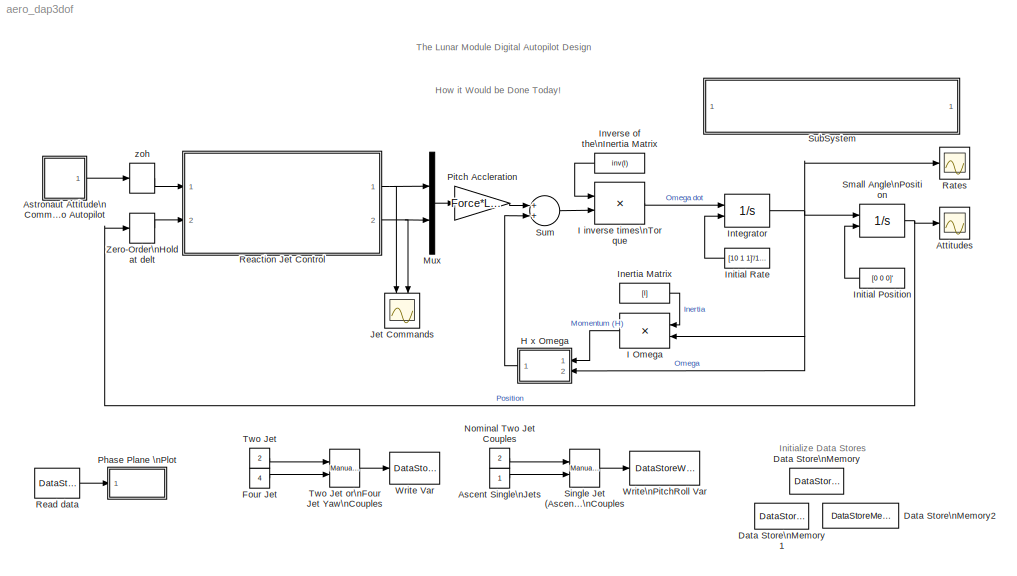
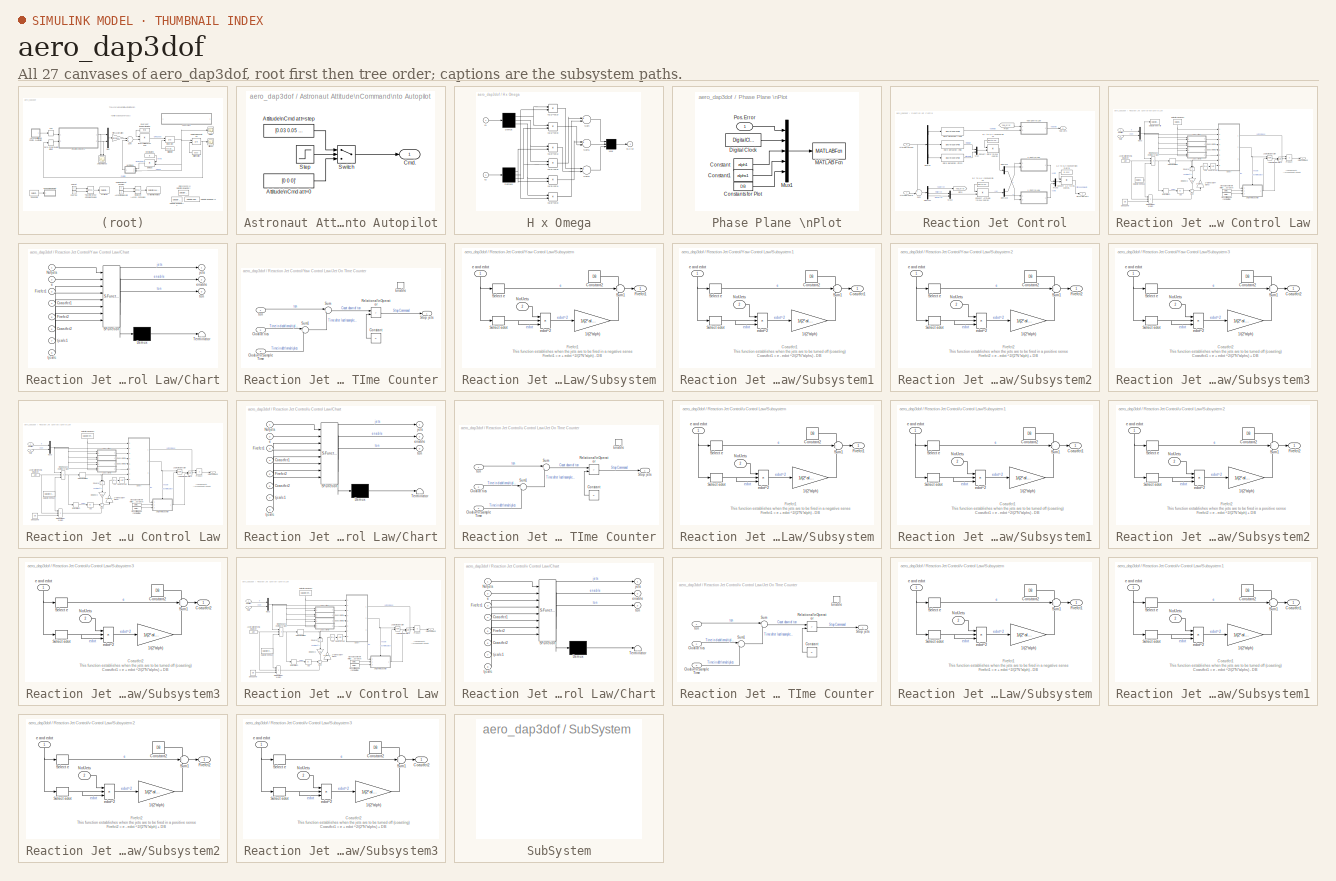
[diagram: thumbnail index - all 27 canvases of the model, root first then tree order]
MODEL aero_dap3dof
KIND model
CONFIG PreLoadFcn = aero_dap3dofdata
BLOCK [Constant] Ascent Single\nJets
BLOCK [SubSystem] Astronaut Attitude\nCommand\nto Autopilot
  MinAlgLoopOccurrences = off
  Ports = [0, 1]
  PropExecContextAcrossSSBoundary = on
  RTWSystemCode = Auto
  TreatAsAtomicUnit = off
BLOCK [Constant] Astronaut Attitude\nCommand\nto Autopilot/Attitude\nCmd at t=0
  Value = [0 0 0]'
  VectorParams1D = off
BLOCK [Constant] Astronaut Attitude\nCommand\nto Autopilot/Attitude\nCmd at t=step
  Value = [0.03 0.05 0.1]'
  VectorParams1D = off
BLOCK [Outport] Astronaut Attitude\nCommand\nto Autopilot/Cmd.
  IconDisplay = Port number
BLOCK [Step] Astronaut Attitude\nCommand\nto Autopilot/Step
  SampleTime = 0
  Time = 0.25
BLOCK [Switch] Astronaut Attitude\nCommand\nto Autopilot/Switch
  Threshold = 0.5
BLOCK [Scope] Attitudes
  DataFormat = StructureWithTime
  LimitDataPoints = off
  NumInputPorts = 1
  Ports = [1]
  YMax = 0.12
  YMin = 0
BLOCK [DataStoreMemory] Data Store\nMemory
  DataStoreName = e_edot
  DialogController = Simulink.DDGSource
  InitialValue = [0 0]
  RTWStateStorageClass = Auto
  ShowAdditionalParam = off
  VectorParams1D = on
BLOCK [DataStoreMemory] Data Store\nMemory1
  DataStoreName = NofJets
  DialogController = Simulink.DDGSource
  InitialValue = 2
  RTWStateStorageClass = Auto
  ShowAdditionalParam = off
  VectorParams1D = on
BLOCK [DataStoreMemory] Data Store\nMemory2
  DataStoreName = PitchRollJets
  DialogController = Simulink.DDGSource
  InitialValue = 2
  RTWStateStorageClass = Auto
  ShowAdditionalParam = off
  VectorParams1D = on
BLOCK [Constant] Four Jet
  Value = 4
BLOCK [SubSystem] H x Omega
  MaskDescription = This block computes the vector cross product of the first input with the second input.  The output is then z= v1 x v2.
  MaskIconFrame = on
  MaskIconOpaque = on
  MaskIconRotate = none
  MaskIconUnits = autoscale
  MaskType = Vector Cross Product
  MinAlgLoopOccurrences = off
  Ports = [2, 1]
  PropExecContextAcrossSSBoundary = on
  RTWSystemCode = Auto
  TreatAsAtomicUnit = off
BLOCK [Demux] H x Omega/Demux
  Outputs = 3
  Ports = [1, 3]
BLOCK [Demux] H x Omega/Demux1
  Outputs = 3
  Ports = [1, 3]
BLOCK [Mux] H x Omega/Mux
  Inputs = 3
  Ports = [3, 1]
BLOCK [Sum] H x Omega/Sum
  Inputs = +-
  Ports = [2, 1]
BLOCK [Sum] H x Omega/Sum1
  Inputs = +-
  Ports = [2, 1]
BLOCK [Sum] H x Omega/Sum2
  Inputs = +-
  Ports = [2, 1]
BLOCK [Inport] H x Omega/v1
  IconDisplay = Port number
  LatchInput = off
  Port = 1
BLOCK [Outport] H x Omega/v1 x v2
  IconDisplay = Port number
  InitialOutput = 0
BLOCK [Product] H x Omega/v1(1)*v2(2)
  Ports = [2, 1]
BLOCK [Product] H x Omega/v1(1)*v2(3)
  Ports = [2, 1]
BLOCK [Product] H x Omega/v1(2)*v2(1)
  Ports = [2, 1]
BLOCK [Product] H x Omega/v1(2)*v2(3)
  Ports = [2, 1]
BLOCK [Product] H x Omega/v1(3)*v2(1)
  Ports = [2, 1]
BLOCK [Product] H x Omega/v1(3)*v2(2)
  Ports = [2, 1]
BLOCK [Inport] H x Omega/v2
  IconDisplay = Port number
  LatchInput = off
  Port = 2
BLOCK [Product] I Omega
  Multiplication = Matrix(*)
  Ports = [2, 1]
BLOCK [Product] I inverse times\nTorque
  Multiplication = Matrix(*)
  Ports = [2, 1]
BLOCK [Constant] Inertia Matrix
  Value = [I]
  VectorParams1D = off
BLOCK [Constant] Initial Position
  Value = [0 0 0]'
  VectorParams1D = off
BLOCK [Constant] Initial Rate
  Value = [10 1 1]'/100
  VectorParams1D = off
BLOCK [Integrator] Integrator
  InitialConditionSource = external
  Ports = [2, 1]
BLOCK [Constant] Inverse of the\nInertia Matrix
  Value = inv(I)
  VectorParams1D = off
BLOCK [Scope] Jet Commands
  DataFormat = Array
  LimitDataPoints = off
  MaxDataPoints = 10000
  NumInputPorts = 2
  Ports = [2]
  TickLabels = on
  TimeRange = 9.999999999999998
  YMax = 3~3
  YMin = -3~-3
BLOCK [Mux] Mux
  Inputs = 2
  Ports = [2, 1]
BLOCK [Constant] Nominal Two Jet Couples
  Value = 2
BLOCK [SubSystem] Phase Plane \nPlot
  MinAlgLoopOccurrences = off
  Ports = [1]
  PropExecContextAcrossSSBoundary = on
  RTWSystemCode = Auto
  TreatAsAtomicUnit = off
BLOCK [Constant] Phase Plane \nPlot/Constant
  Value = alph1
BLOCK [Constant] Phase Plane \nPlot/Constant1
  Value = alphs1
BLOCK [Constant] Phase Plane \nPlot/Constants for Plot
  Value = DB
BLOCK [DigitalClock] Phase Plane \nPlot/Digital Clock
  SampleTime = delt
BLOCK [MATLABFcn] Phase Plane \nPlot/MATLAB Fcn
  MATLABFcn = aero_phaseplane
  OutputDimensions = 0
BLOCK [Mux] Phase Plane \nPlot/Mux1
  DisplayOption = bar
  Inputs = 5
  Ports = [5, 1]
BLOCK [Inport] Phase Plane \nPlot/Pos. Error
  IconDisplay = Port number
  LatchInput = off
  Port = 1
BLOCK [Gain] Pitch Accleration
  Gain = Force*L_arm
BLOCK [Scope] Rates
  DataFormat = StructureWithTime
  LimitDataPoints = off
  NumInputPorts = 1
  Ports = [1]
  YMax = 0.125
  YMin = -0.075
BLOCK [SubSystem] Reaction Jet Control
  AncestorBlock = librcs/Reaction Jet Control
  MinAlgLoopOccurrences = off
  Ports = [2, 2]
  PropExecContextAcrossSSBoundary = on
  RTWSystemCode = Auto
  TreatAsAtomicUnit = off
BLOCK [Inport] Reaction Jet Control/Attitude\nCmd.
  IconDisplay = Port number
  LatchInput = off
  Port = 1
BLOCK [Inport] Reaction Jet Control/Attitude\nMeas.
  IconDisplay = Port number
  LatchInput = off
  Port = 2
BLOCK [Product] Reaction Jet Control/Convert Attitude to\nUV coords.
  Multiplication = Matrix(*)
  Ports = [2, 1]
BLOCK [Product] Reaction Jet Control/Convert Rate to\nUV coords.
  Multiplication = Matrix(*)
  Ports = [2, 1]
BLOCK [Product] Reaction Jet Control/Convert u,v to\nq,r coords.
  Multiplication = Matrix(*)
  Ports = [2, 1]
BLOCK [Demux] Reaction Jet Control/Demux
  Outputs = 3
  Ports = [1, 3]
BLOCK [Demux] Reaction Jet Control/Demux1
  Outputs = 3
  Ports = [1, 3]
BLOCK [Demux] Reaction Jet Control/Demux2
  Outputs = 2
  Ports = [1, 2]
BLOCK [Demux] Reaction Jet Control/Demux3
  Outputs = 2
  Ports = [1, 2]
BLOCK [From] Reaction Jet Control/From
  DialogController = Simulink.DDGSource
  GotoTag = Yaw_error
BLOCK [Goto] Reaction Jet Control/Goto
  DialogController = Simulink.DDGSource
  GotoTag = Yaw_error
  TagVisibility = local
BLOCK [Mux] Reaction Jet Control/Mux
  DisplayOption = bar
  Inputs = 2
  Ports = [2, 1]
BLOCK [Mux] Reaction Jet Control/Mux2
  DisplayOption = bar
  Inputs = 2
  Ports = [2, 1]
BLOCK [Mux] Reaction Jet Control/Mux3
  DisplayOption = bar
  Inputs = 2
  Ports = [2, 1]
BLOCK [Outport] Reaction Jet Control/Pitch//Roll Jets
  IconDisplay = Port number
  InitialOutput = 0
  Port = 2
BLOCK [DiscreteZeroPole] Reaction Jet Control/Rate Derivation (Pitch)
  Gain = 1/delt
  Poles = [0]
  SampleTime = -1
BLOCK [DiscreteZeroPole] Reaction Jet Control/Rate Derivation (Roll)
  Gain = 1/delt
  Poles = [0]
  SampleTime = -1
BLOCK [DiscreteZeroPole] Reaction Jet Control/Rate Derivation (Yaw)
  Gain = 1/delt
  Poles = [0]
  SampleTime = -1
BLOCK [Sum] Reaction Jet Control/Sum
  IconShape = round
  Inputs = +-|
  Ports = [2, 1]
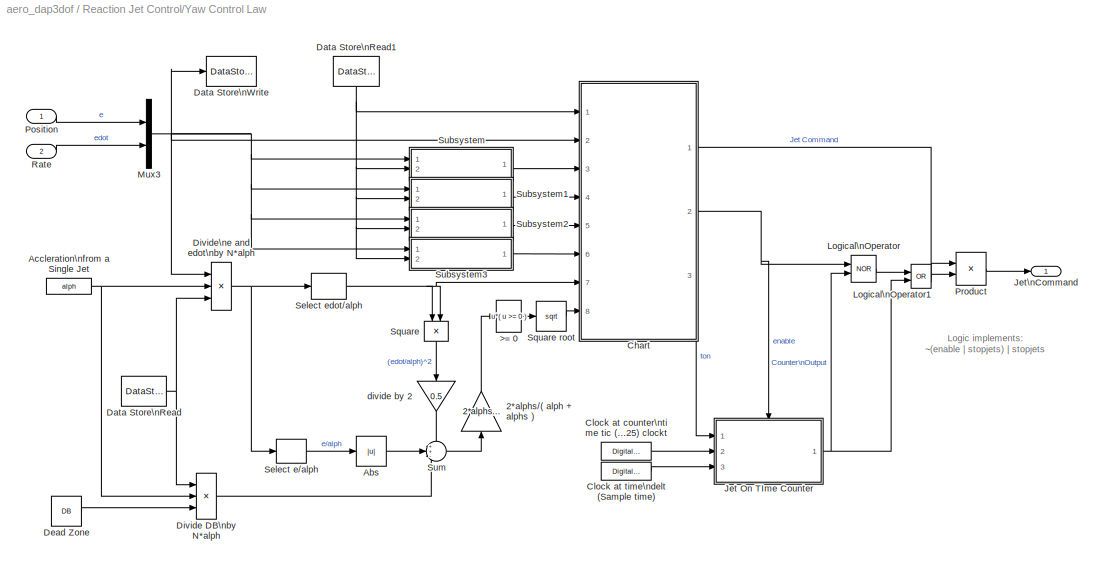
BLOCK [SubSystem] Reaction Jet Control/Yaw Control Law
  AncestorBlock = libdap/Yaw Control Law
  MaskCallbackString = ||||
  MaskDescription = Implements Control Law for the LM. Works for yaw, u and v jet axes.
  MaskEnableString = on,on,on,on,on
  MaskIconFrame = on
  MaskIconOpaque = on
  MaskIconRotate = none
  MaskIconUnits = autoscale
  MaskPromptString = Single Jet Accel:|Single Jet Switch Curve Accel:|Dead Band:|Min Jet On Time:|Sample Time:
  MaskStyleString = edit,edit,edit,edit,edit
  MaskTabNameString = ,,,,
  MaskToolTipString = on,on,on,on,on
  MaskTunableValueString = on,on,on,on,on
  MaskType = Control Law
  MaskValueString = alph1|alphs1|DB|tmin|delt
  MaskVarAliasString = ,,,,
  MaskVariables = alph=@1;alphs=@2;DB=@3;tmin=@4;delt=@5;
  MaskVisibilityString = on,on,on,on,on
  MinAlgLoopOccurrences = off
  Ports = [2, 1]
  PropExecContextAcrossSSBoundary = on
  RTWSystemCode = Auto
  TreatAsAtomicUnit = off
BLOCK [Gain] Reaction Jet Control/Yaw Control Law/2*alphs//( alph + alphs )
  Gain = 2*alphs/( alph + alphs )
BLOCK [Fcn] Reaction Jet Control/Yaw Control Law/>= 0
  Expr = u*( u >= 0 )
BLOCK [Abs] Reaction Jet Control/Yaw Control Law/Abs
BLOCK [Constant] Reaction Jet Control/Yaw Control Law/Accleration\nfrom a Single Jet
  Value = alph
BLOCK [SubSystem] Reaction Jet Control/Yaw Control Law/Chart
  MaskDescription = Stateflow diagram
  MaskDisplay = plot(sf('Private','sfblk','xIcon'),sf('Private','sfblk','yIcon'));text(0.5,0,sf('Private', 'sfblk', 'tIcon'),'HorizontalAl','Center','VerticalAl','Bottom');
  MaskIconFrame = off
  MaskIconOpaque = off
  MaskIconRotate = none
  MaskIconUnits = autoscale
  MaskSelfModifiable = on
  MaskType = Stateflow
  MinAlgLoopOccurrences = off
  Ports = [8, 3]
  PropExecContextAcrossSSBoundary = on
  RTWSystemCode = Auto
  TreatAsAtomicUnit = off
BLOCK [Demux] Reaction Jet Control/Yaw Control Law/Chart/ Demux 
  Outputs = 1
  Ports = [1, 1]
BLOCK [S-Function] Reaction Jet Control/Yaw Control Law/Chart/ SFunction 
  FunctionName = sf_sfun
  Parameters = delt,tmin
  PortCounts = [8 4]
  Ports = [8, 4]
  Tag = Stateflow S-Function aero_dap3dof 4
BLOCK [Terminator] Reaction Jet Control/Yaw Control Law/Chart/ Terminator 
BLOCK [Inport] Reaction Jet Control/Yaw Control Law/Chart/Coastfct1
  IconDisplay = Port number
  LatchInput = off
  Port = 4
BLOCK [Inport] Reaction Jet Control/Yaw Control Law/Chart/Coastfct2
  IconDisplay = Port number
  LatchInput = off
  Port = 6
BLOCK [Inport] Reaction Jet Control/Yaw Control Law/Chart/Firefct1
  IconDisplay = Port number
  LatchInput = off
  Port = 3
BLOCK [Inport] Reaction Jet Control/Yaw Control Law/Chart/Firefct2
  IconDisplay = Port number
  LatchInput = off
  Port = 5
BLOCK [Inport] Reaction Jet Control/Yaw Control Law/Chart/Nofjets
  IconDisplay = Port number
  LatchInput = off
  Port = 1
BLOCK [Inport] Reaction Jet Control/Yaw Control Law/Chart/e
  IconDisplay = Port number
  LatchInput = off
  Port = 2
BLOCK [Outport] Reaction Jet Control/Yaw Control Law/Chart/enable
  IconDisplay = Port number
  Port = 2
BLOCK [Outport] Reaction Jet Control/Yaw Control Law/Chart/jets
  IconDisplay = Port number
BLOCK [Inport] Reaction Jet Control/Yaw Control Law/Chart/tjcalc
  IconDisplay = Port number
  LatchInput = off
  Port = 8
BLOCK [Inport] Reaction Jet Control/Yaw Control Law/Chart/tjcalc1
  IconDisplay = Port number
  LatchInput = off
  Port = 7
BLOCK [Outport] Reaction Jet Control/Yaw Control Law/Chart/ton
  IconDisplay = Port number
  Port = 3
BLOCK [DigitalClock] Reaction Jet Control/Yaw Control Law/Clock at counter\ntime tic (0.000625) clockt
  SampleTime = 0.000625
BLOCK [DigitalClock] Reaction Jet Control/Yaw Control Law/Clock at time\ndelt (Sample time)
  SampleTime = delt
BLOCK [DataStoreRead] Reaction Jet Control/Yaw Control Law/Data Store\nRead
  DataStoreName = NofJets
  DialogController = Simulink.DDGSource
  SampleTime = delt
BLOCK [DataStoreRead] Reaction Jet Control/Yaw Control Law/Data Store\nRead1
  DataStoreName = NofJets
  DialogController = Simulink.DDGSource
  SampleTime = delt
BLOCK [DataStoreWrite] Reaction Jet Control/Yaw Control Law/Data Store\nWrite
  DataStoreName = e_edot
  DialogController = Simulink.DDGSource
  SampleTime = -1
BLOCK [Constant] Reaction Jet Control/Yaw Control Law/Dead Zone
  Value = DB
BLOCK [Product] Reaction Jet Control/Yaw Control Law/Divide DB\nby N*alph
  Inputs = //*
  Ports = [3, 1]
BLOCK [Product] Reaction Jet Control/Yaw Control Law/Divide\ne and edot\nby N*alph
  Inputs = *//
  Ports = [3, 1]
BLOCK [SubSystem] Reaction Jet Control/Yaw Control Law/Jet On TIme Counter
  MinAlgLoopOccurrences = off
  Ports = [3, 1, 1]
  PropExecContextAcrossSSBoundary = on
  RTWSystemCode = Auto
  TreatAsAtomicUnit = on
BLOCK [Inport] Reaction Jet Control/Yaw Control Law/Jet On TIme Counter/Clock at tics
  IconDisplay = Port number
  LatchInput = off
  Port = 2
BLOCK [Inport] Reaction Jet Control/Yaw Control Law/Jet On TIme Counter/Clock at\nSample Time
  IconDisplay = Port number
  LatchInput = off
  Port = 3
BLOCK [Constant] Reaction Jet Control/Yaw Control Law/Jet On TIme Counter/Constant
  Value = 0
BLOCK [EnablePort] Reaction Jet Control/Yaw Control Law/Jet On TIme Counter/Enable
  Ports = []
  StatesWhenEnabling = reset
BLOCK [RelationalOperator] Reaction Jet Control/Yaw Control Law/Jet On TIme Counter/Relational\nOperator
  Operator = >
BLOCK [Outport] Reaction Jet Control/Yaw Control Law/Jet On TIme Counter/Stop jets
  IconDisplay = Port number
BLOCK [Sum] Reaction Jet Control/Yaw Control Law/Jet On TIme Counter/Sum
  IconShape = round
  Inputs = |+-
  Ports = [2, 1]
BLOCK [Sum] Reaction Jet Control/Yaw Control Law/Jet On TIme Counter/Sum1
  IconShape = round
  Inputs = |+-
  Ports = [2, 1]
BLOCK [Inport] Reaction Jet Control/Yaw Control Law/Jet On TIme Counter/ton
  IconDisplay = Port number
  LatchInput = off
  Port = 1
BLOCK [Outport] Reaction Jet Control/Yaw Control Law/Jet\nCommand
  IconDisplay = Port number
  InitialOutput = 0
BLOCK [Logic] Reaction Jet Control/Yaw Control Law/Logical\nOperator
  Operator = NOR
  Ports = [2, 1]
BLOCK [Logic] Reaction Jet Control/Yaw Control Law/Logical\nOperator1
  Operator = OR
  Ports = [2, 1]
BLOCK [Mux] Reaction Jet Control/Yaw Control Law/Mux3
  DisplayOption = bar
  Inputs = 2
  Ports = [2, 1]
BLOCK [Inport] Reaction Jet Control/Yaw Control Law/Position
  IconDisplay = Port number
  LatchInput = off
  Port = 1
BLOCK [Product] Reaction Jet Control/Yaw Control Law/Product
  Ports = [2, 1]
BLOCK [Inport] Reaction Jet Control/Yaw Control Law/Rate
  IconDisplay = Port number
  LatchInput = off
  Port = 2
BLOCK [Selector] Reaction Jet Control/Yaw Control Law/Select e//alph
  Elements = [1]
  InputPortWidth = 2
  Ports = [1, 1]
BLOCK [Selector] Reaction Jet Control/Yaw Control Law/Select edot//alph
  Elements = [2]
  InputPortWidth = 2
  Ports = [1, 1]
BLOCK [Product] Reaction Jet Control/Yaw Control Law/Square
  Ports = [2, 1]
BLOCK [Math] Reaction Jet Control/Yaw Control Law/Square root
  Operator = sqrt
  Ports = [1, 1]
BLOCK [SubSystem] Reaction Jet Control/Yaw Control Law/Subsystem
  MinAlgLoopOccurrences = off
  Ports = [2, 1]
  PropExecContextAcrossSSBoundary = on
  RTWSystemCode = Auto
  TreatAsAtomicUnit = off
BLOCK [Gain] Reaction Jet Control/Yaw Control Law/Subsystem/1//(2*alph)
  Gain = 1/(2*alph)
BLOCK [Constant] Reaction Jet Control/Yaw Control Law/Subsystem/Constant2
  Value = DB
BLOCK [Outport] Reaction Jet Control/Yaw Control Law/Subsystem/Firefct1
  IconDisplay = Port number
BLOCK [Inport] Reaction Jet Control/Yaw Control Law/Subsystem/NofJets
  IconDisplay = Port number
  LatchInput = off
  Port = 2
BLOCK [Selector] Reaction Jet Control/Yaw Control Law/Subsystem/Select e
  Elements = [1]
  InputPortWidth = 2
  Ports = [1, 1]
BLOCK [Selector] Reaction Jet Control/Yaw Control Law/Subsystem/Select edot
  Elements = [2]
  InputPortWidth = 2
  Ports = [1, 1]
BLOCK [Sum] Reaction Jet Control/Yaw Control Law/Subsystem/Sum1
  IconShape = round
  Inputs = -++
  Ports = [3, 1]
BLOCK [Inport] Reaction Jet Control/Yaw Control Law/Subsystem/e and edot
  IconDisplay = Port number
  LatchInput = off
  Port = 1
BLOCK [Product] Reaction Jet Control/Yaw Control Law/Subsystem/edot^2
  Inputs = /**
  Ports = [3, 1]
BLOCK [SubSystem] Reaction Jet Control/Yaw Control Law/Subsystem1
  MinAlgLoopOccurrences = off
  Ports = [2, 1]
  PropExecContextAcrossSSBoundary = on
  RTWSystemCode = Auto
  TreatAsAtomicUnit = off
BLOCK [Gain] Reaction Jet Control/Yaw Control Law/Subsystem1/1//(2*alph)
  Gain = 1/(2*alphs)
BLOCK [Outport] Reaction Jet Control/Yaw Control Law/Subsystem1/Coastfct1
  IconDisplay = Port number
BLOCK [Constant] Reaction Jet Control/Yaw Control Law/Subsystem1/Constant2
  Value = DB
BLOCK [Inport] Reaction Jet Control/Yaw Control Law/Subsystem1/NofJets
  IconDisplay = Port number
  LatchInput = off
  Port = 2
BLOCK [Selector] Reaction Jet Control/Yaw Control Law/Subsystem1/Select e
  Elements = [1]
  InputPortWidth = 2
  Ports = [1, 1]
BLOCK [Selector] Reaction Jet Control/Yaw Control Law/Subsystem1/Select edot
  Elements = [2]
  InputPortWidth = 2
  Ports = [1, 1]
BLOCK [Sum] Reaction Jet Control/Yaw Control Law/Subsystem1/Sum1
  IconShape = round
  Inputs = -+-
  Ports = [3, 1]
BLOCK [Inport] Reaction Jet Control/Yaw Control Law/Subsystem1/e and edot
  IconDisplay = Port number
  LatchInput = off
  Port = 1
BLOCK [Product] Reaction Jet Control/Yaw Control Law/Subsystem1/edot^2
  Inputs = /**
  Ports = [3, 1]
BLOCK [SubSystem] Reaction Jet Control/Yaw Control Law/Subsystem2
  MinAlgLoopOccurrences = off
  Ports = [2, 1]
  PropExecContextAcrossSSBoundary = on
  RTWSystemCode = Auto
  TreatAsAtomicUnit = off
BLOCK [Gain] Reaction Jet Control/Yaw Control Law/Subsystem2/1//(2*alph)
  Gain = 1/(2*alph)
BLOCK [Constant] Reaction Jet Control/Yaw Control Law/Subsystem2/Constant2
  Value = DB
BLOCK [Outport] Reaction Jet Control/Yaw Control Law/Subsystem2/Firefct2
  IconDisplay = Port number
BLOCK [Inport] Reaction Jet Control/Yaw Control Law/Subsystem2/NofJets
  IconDisplay = Port number
  LatchInput = off
  Port = 2
BLOCK [Selector] Reaction Jet Control/Yaw Control Law/Subsystem2/Select e
  Elements = [1]
  InputPortWidth = 2
  Ports = [1, 1]
BLOCK [Selector] Reaction Jet Control/Yaw Control Law/Subsystem2/Select edot
  Elements = [2]
  InputPortWidth = 2
  Ports = [1, 1]
BLOCK [Sum] Reaction Jet Control/Yaw Control Law/Subsystem2/Sum1
  IconShape = round
  Inputs = ++-
  Ports = [3, 1]
BLOCK [Inport] Reaction Jet Control/Yaw Control Law/Subsystem2/e and edot
  IconDisplay = Port number
  LatchInput = off
  Port = 1
BLOCK [Product] Reaction Jet Control/Yaw Control Law/Subsystem2/edot^2
  Inputs = /**
  Ports = [3, 1]
BLOCK [SubSystem] Reaction Jet Control/Yaw Control Law/Subsystem3
  MinAlgLoopOccurrences = off
  Ports = [2, 1]
  PropExecContextAcrossSSBoundary = on
  RTWSystemCode = Auto
  TreatAsAtomicUnit = off
BLOCK [Gain] Reaction Jet Control/Yaw Control Law/Subsystem3/1//(2*alph)
  Gain = 1/(2*alphs)
BLOCK [Outport] Reaction Jet Control/Yaw Control Law/Subsystem3/Coastfct2
  IconDisplay = Port number
BLOCK [Constant] Reaction Jet Control/Yaw Control Law/Subsystem3/Constant2
  Value = DB
BLOCK [Inport] Reaction Jet Control/Yaw Control Law/Subsystem3/NofJets
  IconDisplay = Port number
  LatchInput = off
  Port = 2
BLOCK [Selector] Reaction Jet Control/Yaw Control Law/Subsystem3/Select e
  Elements = [1]
  InputPortWidth = 2
  Ports = [1, 1]
BLOCK [Selector] Reaction Jet Control/Yaw Control Law/Subsystem3/Select edot
  Elements = [2]
  InputPortWidth = 2
  Ports = [1, 1]
BLOCK [Sum] Reaction Jet Control/Yaw Control Law/Subsystem3/Sum1
  IconShape = round
  Inputs = +++
  Ports = [3, 1]
BLOCK [Inport] Reaction Jet Control/Yaw Control Law/Subsystem3/e and edot
  IconDisplay = Port number
  LatchInput = off
  Port = 1
BLOCK [Product] Reaction Jet Control/Yaw Control Law/Subsystem3/edot^2
  Inputs = /**
  Ports = [3, 1]
BLOCK [Sum] Reaction Jet Control/Yaw Control Law/Sum
  IconShape = round
  Inputs = ++-
  Ports = [3, 1]
BLOCK [Gain] Reaction Jet Control/Yaw Control Law/divide by 2
  Gain = 0.5
BLOCK [Outport] Reaction Jet Control/Yaw Jets
  IconDisplay = Port number
  InitialOutput = 0
BLOCK [Constant] Reaction Jet Control/q,r to u,v \nconversion1
  Value = [sqrt(2) sqrt(2); -sqrt(2) sqrt(2)]/2
  VectorParams1D = off
BLOCK [Constant] Reaction Jet Control/q,r to u,v \nconversion2
  Value = [sqrt(2) sqrt(2); -sqrt(2) sqrt(2)]/2
  VectorParams1D = off
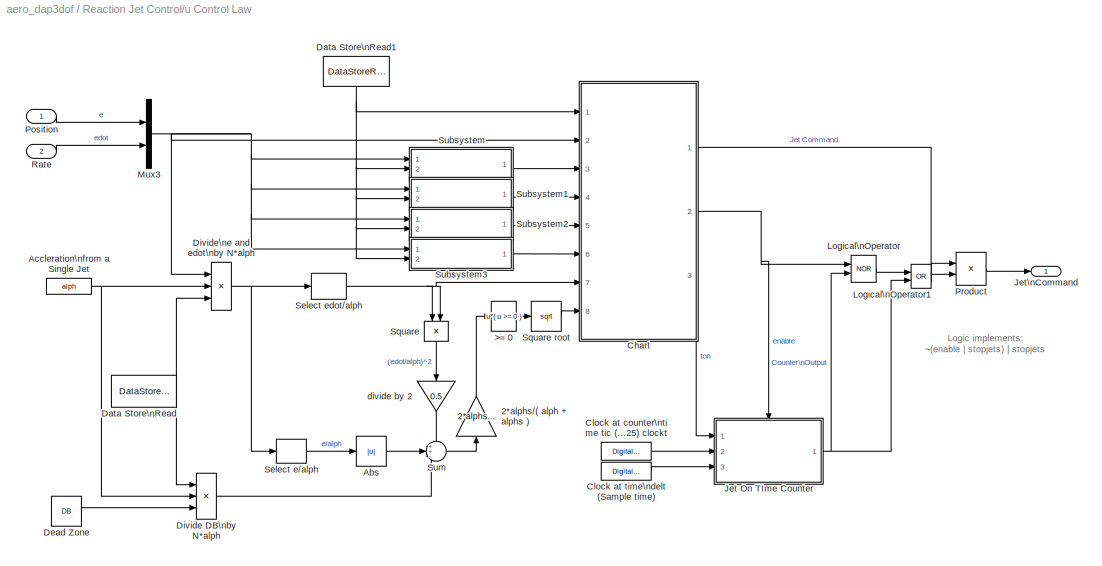
BLOCK [SubSystem] Reaction Jet Control/u Control Law
  AncestorBlock = libdap/Pitch Roll Control Law
  MaskCallbackString = ||||
  MaskDescription = Implements Control Law for the LM. Works for yaw, u and v jet axes.
  MaskEnableString = on,on,on,on,on
  MaskIconFrame = on
  MaskIconOpaque = on
  MaskIconRotate = none
  MaskIconUnits = autoscale
  MaskPromptString = Single Jet Accel:|Single Jet Switch Curve Accel:|Dead Band:|Min. Jet On Time:|Sample Time:
  MaskStyleString = edit,edit,edit,edit,edit
  MaskTabNameString = ,,,,
  MaskToolTipString = on,on,on,on,on
  MaskTunableValueString = on,on,on,on,on
  MaskType = Control Law
  MaskValueString = alphu|alphsu|DB|tmin|delt
  MaskVarAliasString = ,,,,
  MaskVariables = alph=@1;alphs=@2;DB=@3;tmin=@4;delt=@5;
  MaskVisibilityString = on,on,on,on,on
  MinAlgLoopOccurrences = off
  Ports = [2, 1]
  PropExecContextAcrossSSBoundary = on
  RTWSystemCode = Auto
  TreatAsAtomicUnit = off
BLOCK [Gain] Reaction Jet Control/u Control Law/2*alphs//( alph + alphs )
  Gain = 2*alphs/( alph + alphs )
BLOCK [Fcn] Reaction Jet Control/u Control Law/>= 0
  Expr = u*( u >= 0 )
BLOCK [Abs] Reaction Jet Control/u Control Law/Abs
BLOCK [Constant] Reaction Jet Control/u Control Law/Accleration\nfrom a Single Jet
  Value = alph
BLOCK [SubSystem] Reaction Jet Control/u Control Law/Chart
  MaskDescription = Stateflow diagram
  MaskDisplay = plot(sf('Private','sfblk','xIcon'),sf('Private','sfblk','yIcon'));text(0.5,0,sf('Private', 'sfblk', 'tIcon'),'HorizontalAl','Center','VerticalAl','Bottom');
  MaskIconFrame = off
  MaskIconOpaque = off
  MaskIconRotate = none
  MaskIconUnits = autoscale
  MaskSelfModifiable = on
  MaskType = Stateflow
  MinAlgLoopOccurrences = off
  Ports = [8, 3]
  PropExecContextAcrossSSBoundary = on
  RTWSystemCode = Auto
  TreatAsAtomicUnit = off
BLOCK [Demux] Reaction Jet Control/u Control Law/Chart/ Demux 
  Outputs = 1
  Ports = [1, 1]
BLOCK [S-Function] Reaction Jet Control/u Control Law/Chart/ SFunction 
  FunctionName = sf_sfun
  Parameters = delt,tmin
  PortCounts = [8 4]
  Ports = [8, 4]
  Tag = Stateflow S-Function aero_dap3dof 1
BLOCK [Terminator] Reaction Jet Control/u Control Law/Chart/ Terminator 
BLOCK [Inport] Reaction Jet Control/u Control Law/Chart/Coastfct1
  IconDisplay = Port number
  LatchInput = off
  Port = 4
BLOCK [Inport] Reaction Jet Control/u Control Law/Chart/Coastfct2
  IconDisplay = Port number
  LatchInput = off
  Port = 6
BLOCK [Inport] Reaction Jet Control/u Control Law/Chart/Firefct1
  IconDisplay = Port number
  LatchInput = off
  Port = 3
BLOCK [Inport] Reaction Jet Control/u Control Law/Chart/Firefct2
  IconDisplay = Port number
  LatchInput = off
  Port = 5
BLOCK [Inport] Reaction Jet Control/u Control Law/Chart/Nofjets
  IconDisplay = Port number
  LatchInput = off
  Port = 1
BLOCK [Inport] Reaction Jet Control/u Control Law/Chart/e
  IconDisplay = Port number
  LatchInput = off
  Port = 2
BLOCK [Outport] Reaction Jet Control/u Control Law/Chart/enable
  IconDisplay = Port number
  Port = 2
BLOCK [Outport] Reaction Jet Control/u Control Law/Chart/jets
  IconDisplay = Port number
BLOCK [Inport] Reaction Jet Control/u Control Law/Chart/tjcalc
  IconDisplay = Port number
  LatchInput = off
  Port = 8
BLOCK [Inport] Reaction Jet Control/u Control Law/Chart/tjcalc1
  IconDisplay = Port number
  LatchInput = off
  Port = 7
BLOCK [Outport] Reaction Jet Control/u Control Law/Chart/ton
  IconDisplay = Port number
  Port = 3
BLOCK [DigitalClock] Reaction Jet Control/u Control Law/Clock at counter\ntime tic (0.000625) clockt
  SampleTime = 0.000625
BLOCK [DigitalClock] Reaction Jet Control/u Control Law/Clock at time\ndelt (Sample time)
  SampleTime = delt
BLOCK [DataStoreRead] Reaction Jet Control/u Control Law/Data Store\nRead
  DataStoreName = PitchRollJets
  DialogController = Simulink.DDGSource
  SampleTime = delt
BLOCK [DataStoreRead] Reaction Jet Control/u Control Law/Data Store\nRead1
  DataStoreName = PitchRollJets
  DialogController = Simulink.DDGSource
  SampleTime = delt
BLOCK [Constant] Reaction Jet Control/u Control Law/Dead Zone
  Value = DB
BLOCK [Product] Reaction Jet Control/u Control Law/Divide DB\nby N*alph
  Inputs = //*
  Ports = [3, 1]
BLOCK [Product] Reaction Jet Control/u Control Law/Divide\ne and edot\nby N*alph
  Inputs = *//
  Ports = [3, 1]
BLOCK [SubSystem] Reaction Jet Control/u Control Law/Jet On TIme Counter
  MinAlgLoopOccurrences = off
  Ports = [3, 1, 1]
  PropExecContextAcrossSSBoundary = on
  RTWSystemCode = Auto
  TreatAsAtomicUnit = on
BLOCK [Inport] Reaction Jet Control/u Control Law/Jet On TIme Counter/Clock at tics
  IconDisplay = Port number
  LatchInput = off
  Port = 2
BLOCK [Inport] Reaction Jet Control/u Control Law/Jet On TIme Counter/Clock at\nSample Time
  IconDisplay = Port number
  LatchInput = off
  Port = 3
BLOCK [Constant] Reaction Jet Control/u Control Law/Jet On TIme Counter/Constant
  Value = 0
BLOCK [EnablePort] Reaction Jet Control/u Control Law/Jet On TIme Counter/Enable
  Ports = []
  StatesWhenEnabling = reset
BLOCK [RelationalOperator] Reaction Jet Control/u Control Law/Jet On TIme Counter/Relational\nOperator
  Operator = >
BLOCK [Outport] Reaction Jet Control/u Control Law/Jet On TIme Counter/Stop jets
  IconDisplay = Port number
BLOCK [Sum] Reaction Jet Control/u Control Law/Jet On TIme Counter/Sum
  IconShape = round
  Inputs = |+-
  Ports = [2, 1]
BLOCK [Sum] Reaction Jet Control/u Control Law/Jet On TIme Counter/Sum1
  IconShape = round
  Inputs = |+-
  Ports = [2, 1]
BLOCK [Inport] Reaction Jet Control/u Control Law/Jet On TIme Counter/ton
  IconDisplay = Port number
  LatchInput = off
  Port = 1
BLOCK [Outport] Reaction Jet Control/u Control Law/Jet\nCommand
  IconDisplay = Port number
  InitialOutput = 0
BLOCK [Logic] Reaction Jet Control/u Control Law/Logical\nOperator
  Operator = NOR
  Ports = [2, 1]
BLOCK [Logic] Reaction Jet Control/u Control Law/Logical\nOperator1
  Operator = OR
  Ports = [2, 1]
BLOCK [Mux] Reaction Jet Control/u Control Law/Mux3
  DisplayOption = bar
  Inputs = 2
  Ports = [2, 1]
BLOCK [Inport] Reaction Jet Control/u Control Law/Position
  IconDisplay = Port number
  LatchInput = off
  Port = 1
BLOCK [Product] Reaction Jet Control/u Control Law/Product
  Ports = [2, 1]
BLOCK [Inport] Reaction Jet Control/u Control Law/Rate
  IconDisplay = Port number
  LatchInput = off
  Port = 2
BLOCK [Selector] Reaction Jet Control/u Control Law/Select e//alph
  Elements = [1]
  InputPortWidth = 2
  Ports = [1, 1]
BLOCK [Selector] Reaction Jet Control/u Control Law/Select edot//alph
  Elements = [2]
  InputPortWidth = 2
  Ports = [1, 1]
BLOCK [Product] Reaction Jet Control/u Control Law/Square
  Ports = [2, 1]
BLOCK [Math] Reaction Jet Control/u Control Law/Square root
  Operator = sqrt
  Ports = [1, 1]
BLOCK [SubSystem] Reaction Jet Control/u Control Law/Subsystem
  MinAlgLoopOccurrences = off
  Ports = [2, 1]
  PropExecContextAcrossSSBoundary = on
  RTWSystemCode = Auto
  TreatAsAtomicUnit = off
BLOCK [Gain] Reaction Jet Control/u Control Law/Subsystem/1//(2*alph)
  Gain = 1/(2*alph)
BLOCK [Constant] Reaction Jet Control/u Control Law/Subsystem/Constant2
  Value = DB
BLOCK [Outport] Reaction Jet Control/u Control Law/Subsystem/Firefct1
  IconDisplay = Port number
BLOCK [Inport] Reaction Jet Control/u Control Law/Subsystem/NofJets
  IconDisplay = Port number
  LatchInput = off
  Port = 2
BLOCK [Selector] Reaction Jet Control/u Control Law/Subsystem/Select e
  Elements = [1]
  InputPortWidth = 2
  Ports = [1, 1]
BLOCK [Selector] Reaction Jet Control/u Control Law/Subsystem/Select edot
  Elements = [2]
  InputPortWidth = 2
  Ports = [1, 1]
BLOCK [Sum] Reaction Jet Control/u Control Law/Subsystem/Sum1
  IconShape = round
  Inputs = -++
  Ports = [3, 1]
BLOCK [Inport] Reaction Jet Control/u Control Law/Subsystem/e and edot
  IconDisplay = Port number
  LatchInput = off
  Port = 1
BLOCK [Product] Reaction Jet Control/u Control Law/Subsystem/edot^2
  Inputs = /**
  Ports = [3, 1]
BLOCK [SubSystem] Reaction Jet Control/u Control Law/Subsystem1
  MinAlgLoopOccurrences = off
  Ports = [2, 1]
  PropExecContextAcrossSSBoundary = on
  RTWSystemCode = Auto
  TreatAsAtomicUnit = off
BLOCK [Gain] Reaction Jet Control/u Control Law/Subsystem1/1//(2*alph)
  Gain = 1/(2*alphs)
BLOCK [Outport] Reaction Jet Control/u Control Law/Subsystem1/Coastfct1
  IconDisplay = Port number
BLOCK [Constant] Reaction Jet Control/u Control Law/Subsystem1/Constant2
  Value = DB
BLOCK [Inport] Reaction Jet Control/u Control Law/Subsystem1/NofJets
  IconDisplay = Port number
  LatchInput = off
  Port = 2
BLOCK [Selector] Reaction Jet Control/u Control Law/Subsystem1/Select e
  Elements = [1]
  InputPortWidth = 2
  Ports = [1, 1]
BLOCK [Selector] Reaction Jet Control/u Control Law/Subsystem1/Select edot
  Elements = [2]
  InputPortWidth = 2
  Ports = [1, 1]
BLOCK [Sum] Reaction Jet Control/u Control Law/Subsystem1/Sum1
  IconShape = round
  Inputs = -+-
  Ports = [3, 1]
BLOCK [Inport] Reaction Jet Control/u Control Law/Subsystem1/e and edot
  IconDisplay = Port number
  LatchInput = off
  Port = 1
BLOCK [Product] Reaction Jet Control/u Control Law/Subsystem1/edot^2
  Inputs = /**
  Ports = [3, 1]
BLOCK [SubSystem] Reaction Jet Control/u Control Law/Subsystem2
  MinAlgLoopOccurrences = off
  Ports = [2, 1]
  PropExecContextAcrossSSBoundary = on
  RTWSystemCode = Auto
  TreatAsAtomicUnit = off
BLOCK [Gain] Reaction Jet Control/u Control Law/Subsystem2/1//(2*alph)
  Gain = 1/(2*alph)
BLOCK [Constant] Reaction Jet Control/u Control Law/Subsystem2/Constant2
  Value = DB
BLOCK [Outport] Reaction Jet Control/u Control Law/Subsystem2/Firefct2
  IconDisplay = Port number
BLOCK [Inport] Reaction Jet Control/u Control Law/Subsystem2/NofJets
  IconDisplay = Port number
  LatchInput = off
  Port = 2
BLOCK [Selector] Reaction Jet Control/u Control Law/Subsystem2/Select e
  Elements = [1]
  InputPortWidth = 2
  Ports = [1, 1]
BLOCK [Selector] Reaction Jet Control/u Control Law/Subsystem2/Select edot
  Elements = [2]
  InputPortWidth = 2
  Ports = [1, 1]
BLOCK [Sum] Reaction Jet Control/u Control Law/Subsystem2/Sum1
  IconShape = round
  Inputs = ++-
  Ports = [3, 1]
BLOCK [Inport] Reaction Jet Control/u Control Law/Subsystem2/e and edot
  IconDisplay = Port number
  LatchInput = off
  Port = 1
BLOCK [Product] Reaction Jet Control/u Control Law/Subsystem2/edot^2
  Inputs = /**
  Ports = [3, 1]
BLOCK [SubSystem] Reaction Jet Control/u Control Law/Subsystem3
  MinAlgLoopOccurrences = off
  Ports = [2, 1]
  PropExecContextAcrossSSBoundary = on
  RTWSystemCode = Auto
  TreatAsAtomicUnit = off
BLOCK [Gain] Reaction Jet Control/u Control Law/Subsystem3/1//(2*alph)
  Gain = 1/(2*alphs)
BLOCK [Outport] Reaction Jet Control/u Control Law/Subsystem3/Coastfct2
  IconDisplay = Port number
BLOCK [Constant] Reaction Jet Control/u Control Law/Subsystem3/Constant2
  Value = DB
BLOCK [Inport] Reaction Jet Control/u Control Law/Subsystem3/NofJets
  IconDisplay = Port number
  LatchInput = off
  Port = 2
BLOCK [Selector] Reaction Jet Control/u Control Law/Subsystem3/Select e
  Elements = [1]
  InputPortWidth = 2
  Ports = [1, 1]
BLOCK [Selector] Reaction Jet Control/u Control Law/Subsystem3/Select edot
  Elements = [2]
  InputPortWidth = 2
  Ports = [1, 1]
BLOCK [Sum] Reaction Jet Control/u Control Law/Subsystem3/Sum1
  IconShape = round
  Inputs = +++
  Ports = [3, 1]
BLOCK [Inport] Reaction Jet Control/u Control Law/Subsystem3/e and edot
  IconDisplay = Port number
  LatchInput = off
  Port = 1
BLOCK [Product] Reaction Jet Control/u Control Law/Subsystem3/edot^2
  Inputs = /**
  Ports = [3, 1]
BLOCK [Sum] Reaction Jet Control/u Control Law/Sum
  IconShape = round
  Inputs = ++-
  Ports = [3, 1]
BLOCK [Gain] Reaction Jet Control/u Control Law/divide by 2
  Gain = 0.5
BLOCK [Constant] Reaction Jet Control/u,v to q,r\nconversion matrix
  Value = [1 -1; 1 1]
  VectorParams1D = off
BLOCK [SubSystem] Reaction Jet Control/v Control Law
  AncestorBlock = libdap/Pitch Roll Control Law
  MaskCallbackString = ||||
  MaskDescription = Implements Control Law for the LM. Works for yaw, u and v jet axes.
  MaskEnableString = on,on,on,on,on
  MaskIconFrame = on
  MaskIconOpaque = on
  MaskIconRotate = none
  MaskIconUnits = autoscale
  MaskPromptString = Single Jet Accel:|Single Jet Switch Curve Accel:|Dead Band:|Min. Jet On Time:|Sample Time:
  MaskStyleString = edit,edit,edit,edit,edit
  MaskTabNameString = ,,,,
  MaskToolTipString = on,on,on,on,on
  MaskTunableValueString = on,on,on,on,on
  MaskType = Control Law
  MaskValueString = alphv|alphsv|DB|tmin|delt
  MaskVarAliasString = ,,,,
  MaskVariables = alph=@1;alphs=@2;DB=@3;tmin=@4;delt=@5;
  MaskVisibilityString = on,on,on,on,on
  MinAlgLoopOccurrences = off
  Ports = [2, 1]
  PropExecContextAcrossSSBoundary = on
  RTWSystemCode = Auto
  TreatAsAtomicUnit = off
BLOCK [Gain] Reaction Jet Control/v Control Law/2*alphs//( alph + alphs )
  Gain = 2*alphs/( alph + alphs )
BLOCK [Fcn] Reaction Jet Control/v Control Law/>= 0
  Expr = u*( u >= 0 )
BLOCK [Abs] Reaction Jet Control/v Control Law/Abs
BLOCK [Constant] Reaction Jet Control/v Control Law/Accleration\nfrom a Single Jet
  Value = alph
BLOCK [SubSystem] Reaction Jet Control/v Control Law/Chart
  MaskDescription = Stateflow diagram
  MaskDisplay = plot(sf('Private','sfblk','xIcon'),sf('Private','sfblk','yIcon'));text(0.5,0,sf('Private', 'sfblk', 'tIcon'),'HorizontalAl','Center','VerticalAl','Bottom');
  MaskIconFrame = off
  MaskIconOpaque = off
  MaskIconRotate = none
  MaskIconUnits = autoscale
  MaskSelfModifiable = on
  MaskType = Stateflow
  MinAlgLoopOccurrences = off
  Ports = [8, 3]
  PropExecContextAcrossSSBoundary = on
  RTWSystemCode = Auto
  TreatAsAtomicUnit = off
BLOCK [Demux] Reaction Jet Control/v Control Law/Chart/ Demux 
  Outputs = 1
  Ports = [1, 1]
BLOCK [S-Function] Reaction Jet Control/v Control Law/Chart/ SFunction 
  FunctionName = sf_sfun
  Parameters = delt,tmin
  PortCounts = [8 4]
  Ports = [8, 4]
  Tag = Stateflow S-Function aero_dap3dof 2
BLOCK [Terminator] Reaction Jet Control/v Control Law/Chart/ Terminator 
BLOCK [Inport] Reaction Jet Control/v Control Law/Chart/Coastfct1
  IconDisplay = Port number
  LatchInput = off
  Port = 4
BLOCK [Inport] Reaction Jet Control/v Control Law/Chart/Coastfct2
  IconDisplay = Port number
  LatchInput = off
  Port = 6
BLOCK [Inport] Reaction Jet Control/v Control Law/Chart/Firefct1
  IconDisplay = Port number
  LatchInput = off
  Port = 3
BLOCK [Inport] Reaction Jet Control/v Control Law/Chart/Firefct2
  IconDisplay = Port number
  LatchInput = off
  Port = 5
BLOCK [Inport] Reaction Jet Control/v Control Law/Chart/Nofjets
  IconDisplay = Port number
  LatchInput = off
  Port = 1
BLOCK [Inport] Reaction Jet Control/v Control Law/Chart/e
  IconDisplay = Port number
  LatchInput = off
  Port = 2
BLOCK [Outport] Reaction Jet Control/v Control Law/Chart/enable
  IconDisplay = Port number
  Port = 2
BLOCK [Outport] Reaction Jet Control/v Control Law/Chart/jets
  IconDisplay = Port number
BLOCK [Inport] Reaction Jet Control/v Control Law/Chart/tjcalc
  IconDisplay = Port number
  LatchInput = off
  Port = 8
BLOCK [Inport] Reaction Jet Control/v Control Law/Chart/tjcalc1
  IconDisplay = Port number
  LatchInput = off
  Port = 7
BLOCK [Outport] Reaction Jet Control/v Control Law/Chart/ton
  IconDisplay = Port number
  Port = 3
BLOCK [DigitalClock] Reaction Jet Control/v Control Law/Clock at counter\ntime tic (0.000625) clockt
  SampleTime = 0.000625
BLOCK [DigitalClock] Reaction Jet Control/v Control Law/Clock at time\ndelt (Sample time)
  SampleTime = delt
BLOCK [DataStoreRead] Reaction Jet Control/v Control Law/Data Store\nRead
  DataStoreName = PitchRollJets
  DialogController = Simulink.DDGSource
  SampleTime = delt
BLOCK [DataStoreRead] Reaction Jet Control/v Control Law/Data Store\nRead1
  DataStoreName = PitchRollJets
  DialogController = Simulink.DDGSource
  SampleTime = delt
BLOCK [Constant] Reaction Jet Control/v Control Law/Dead Zone
  Value = DB
BLOCK [Product] Reaction Jet Control/v Control Law/Divide DB\nby N*alph
  Inputs = //*
  Ports = [3, 1]
BLOCK [Product] Reaction Jet Control/v Control Law/Divide\ne and edot\nby N*alph
  Inputs = *//
  Ports = [3, 1]
BLOCK [SubSystem] Reaction Jet Control/v Control Law/Jet On TIme Counter
  MinAlgLoopOccurrences = off
  Ports = [3, 1, 1]
  PropExecContextAcrossSSBoundary = on
  RTWSystemCode = Auto
  TreatAsAtomicUnit = on
BLOCK [Inport] Reaction Jet Control/v Control Law/Jet On TIme Counter/Clock at tics
  IconDisplay = Port number
  LatchInput = off
  Port = 2
BLOCK [Inport] Reaction Jet Control/v Control Law/Jet On TIme Counter/Clock at\nSample Time
  IconDisplay = Port number
  LatchInput = off
  Port = 3
BLOCK [Constant] Reaction Jet Control/v Control Law/Jet On TIme Counter/Constant
  Value = 0
BLOCK [EnablePort] Reaction Jet Control/v Control Law/Jet On TIme Counter/Enable
  Ports = []
  StatesWhenEnabling = reset
BLOCK [RelationalOperator] Reaction Jet Control/v Control Law/Jet On TIme Counter/Relational\nOperator
  Operator = >
BLOCK [Outport] Reaction Jet Control/v Control Law/Jet On TIme Counter/Stop jets
  IconDisplay = Port number
BLOCK [Sum] Reaction Jet Control/v Control Law/Jet On TIme Counter/Sum
  IconShape = round
  Inputs = |+-
  Ports = [2, 1]
BLOCK [Sum] Reaction Jet Control/v Control Law/Jet On TIme Counter/Sum1
  IconShape = round
  Inputs = |+-
  Ports = [2, 1]
BLOCK [Inport] Reaction Jet Control/v Control Law/Jet On TIme Counter/ton
  IconDisplay = Port number
  LatchInput = off
  Port = 1
BLOCK [Outport] Reaction Jet Control/v Control Law/Jet\nCommand
  IconDisplay = Port number
  InitialOutput = 0
BLOCK [Logic] Reaction Jet Control/v Control Law/Logical\nOperator
  Operator = NOR
  Ports = [2, 1]
BLOCK [Logic] Reaction Jet Control/v Control Law/Logical\nOperator1
  Operator = OR
  Ports = [2, 1]
BLOCK [Mux] Reaction Jet Control/v Control Law/Mux3
  DisplayOption = bar
  Inputs = 2
  Ports = [2, 1]
BLOCK [Inport] Reaction Jet Control/v Control Law/Position
  IconDisplay = Port number
  LatchInput = off
  Port = 1
BLOCK [Product] Reaction Jet Control/v Control Law/Product
  Ports = [2, 1]
BLOCK [Inport] Reaction Jet Control/v Control Law/Rate
  IconDisplay = Port number
  LatchInput = off
  Port = 2
BLOCK [Selector] Reaction Jet Control/v Control Law/Select e//alph
  Elements = [1]
  InputPortWidth = 2
  Ports = [1, 1]
BLOCK [Selector] Reaction Jet Control/v Control Law/Select edot//alph
  Elements = [2]
  InputPortWidth = 2
  Ports = [1, 1]
BLOCK [Product] Reaction Jet Control/v Control Law/Square
  Ports = [2, 1]
BLOCK [Math] Reaction Jet Control/v Control Law/Square root
  Operator = sqrt
  Ports = [1, 1]
BLOCK [SubSystem] Reaction Jet Control/v Control Law/Subsystem
  MinAlgLoopOccurrences = off
  Ports = [2, 1]
  PropExecContextAcrossSSBoundary = on
  RTWSystemCode = Auto
  TreatAsAtomicUnit = off
BLOCK [Gain] Reaction Jet Control/v Control Law/Subsystem/1//(2*alph)
  Gain = 1/(2*alph)
BLOCK [Constant] Reaction Jet Control/v Control Law/Subsystem/Constant2
  Value = DB
BLOCK [Outport] Reaction Jet Control/v Control Law/Subsystem/Firefct1
  IconDisplay = Port number
BLOCK [Inport] Reaction Jet Control/v Control Law/Subsystem/NofJets
  IconDisplay = Port number
  LatchInput = off
  Port = 2
BLOCK [Selector] Reaction Jet Control/v Control Law/Subsystem/Select e
  Elements = [1]
  InputPortWidth = 2
  Ports = [1, 1]
BLOCK [Selector] Reaction Jet Control/v Control Law/Subsystem/Select edot
  Elements = [2]
  InputPortWidth = 2
  Ports = [1, 1]
BLOCK [Sum] Reaction Jet Control/v Control Law/Subsystem/Sum1
  IconShape = round
  Inputs = -++
  Ports = [3, 1]
BLOCK [Inport] Reaction Jet Control/v Control Law/Subsystem/e and edot
  IconDisplay = Port number
  LatchInput = off
  Port = 1
BLOCK [Product] Reaction Jet Control/v Control Law/Subsystem/edot^2
  Inputs = /**
  Ports = [3, 1]
BLOCK [SubSystem] Reaction Jet Control/v Control Law/Subsystem1
  MinAlgLoopOccurrences = off
  Ports = [2, 1]
  PropExecContextAcrossSSBoundary = on
  RTWSystemCode = Auto
  TreatAsAtomicUnit = off
BLOCK [Gain] Reaction Jet Control/v Control Law/Subsystem1/1//(2*alph)
  Gain = 1/(2*alphs)
BLOCK [Outport] Reaction Jet Control/v Control Law/Subsystem1/Coastfct1
  IconDisplay = Port number
BLOCK [Constant] Reaction Jet Control/v Control Law/Subsystem1/Constant2
  Value = DB
BLOCK [Inport] Reaction Jet Control/v Control Law/Subsystem1/NofJets
  IconDisplay = Port number
  LatchInput = off
  Port = 2
BLOCK [Selector] Reaction Jet Control/v Control Law/Subsystem1/Select e
  Elements = [1]
  InputPortWidth = 2
  Ports = [1, 1]
BLOCK [Selector] Reaction Jet Control/v Control Law/Subsystem1/Select edot
  Elements = [2]
  InputPortWidth = 2
  Ports = [1, 1]
BLOCK [Sum] Reaction Jet Control/v Control Law/Subsystem1/Sum1
  IconShape = round
  Inputs = -+-
  Ports = [3, 1]
BLOCK [Inport] Reaction Jet Control/v Control Law/Subsystem1/e and edot
  IconDisplay = Port number
  LatchInput = off
  Port = 1
BLOCK [Product] Reaction Jet Control/v Control Law/Subsystem1/edot^2
  Inputs = /**
  Ports = [3, 1]
BLOCK [SubSystem] Reaction Jet Control/v Control Law/Subsystem2
  MinAlgLoopOccurrences = off
  Ports = [2, 1]
  PropExecContextAcrossSSBoundary = on
  RTWSystemCode = Auto
  TreatAsAtomicUnit = off
BLOCK [Gain] Reaction Jet Control/v Control Law/Subsystem2/1//(2*alph)
  Gain = 1/(2*alph)
BLOCK [Constant] Reaction Jet Control/v Control Law/Subsystem2/Constant2
  Value = DB
BLOCK [Outport] Reaction Jet Control/v Control Law/Subsystem2/Firefct2
  IconDisplay = Port number
BLOCK [Inport] Reaction Jet Control/v Control Law/Subsystem2/NofJets
  IconDisplay = Port number
  LatchInput = off
  Port = 2
BLOCK [Selector] Reaction Jet Control/v Control Law/Subsystem2/Select e
  Elements = [1]
  InputPortWidth = 2
  Ports = [1, 1]
BLOCK [Selector] Reaction Jet Control/v Control Law/Subsystem2/Select edot
  Elements = [2]
  InputPortWidth = 2
  Ports = [1, 1]
BLOCK [Sum] Reaction Jet Control/v Control Law/Subsystem2/Sum1
  IconShape = round
  Inputs = ++-
  Ports = [3, 1]
BLOCK [Inport] Reaction Jet Control/v Control Law/Subsystem2/e and edot
  IconDisplay = Port number
  LatchInput = off
  Port = 1
BLOCK [Product] Reaction Jet Control/v Control Law/Subsystem2/edot^2
  Inputs = /**
  Ports = [3, 1]
BLOCK [SubSystem] Reaction Jet Control/v Control Law/Subsystem3
  MinAlgLoopOccurrences = off
  Ports = [2, 1]
  PropExecContextAcrossSSBoundary = on
  RTWSystemCode = Auto
  TreatAsAtomicUnit = off
BLOCK [Gain] Reaction Jet Control/v Control Law/Subsystem3/1//(2*alph)
  Gain = 1/(2*alphs)
BLOCK [Outport] Reaction Jet Control/v Control Law/Subsystem3/Coastfct2
  IconDisplay = Port number
BLOCK [Constant] Reaction Jet Control/v Control Law/Subsystem3/Constant2
  Value = DB
BLOCK [Inport] Reaction Jet Control/v Control Law/Subsystem3/NofJets
  IconDisplay = Port number
  LatchInput = off
  Port = 2
BLOCK [Selector] Reaction Jet Control/v Control Law/Subsystem3/Select e
  Elements = [1]
  InputPortWidth = 2
  Ports = [1, 1]
BLOCK [Selector] Reaction Jet Control/v Control Law/Subsystem3/Select edot
  Elements = [2]
  InputPortWidth = 2
  Ports = [1, 1]
BLOCK [Sum] Reaction Jet Control/v Control Law/Subsystem3/Sum1
  IconShape = round
  Inputs = +++
  Ports = [3, 1]
BLOCK [Inport] Reaction Jet Control/v Control Law/Subsystem3/e and edot
  IconDisplay = Port number
  LatchInput = off
  Port = 1
BLOCK [Product] Reaction Jet Control/v Control Law/Subsystem3/edot^2
  Inputs = /**
  Ports = [3, 1]
BLOCK [Sum] Reaction Jet Control/v Control Law/Sum
  IconShape = round
  Inputs = ++-
  Ports = [3, 1]
BLOCK [Gain] Reaction Jet Control/v Control Law/divide by 2
  Gain = 0.5
BLOCK [DataStoreRead] Read data
  DataStoreName = e_edot
  DialogController = Simulink.DDGSource
  SampleTime = delt
BLOCK [Reference] Single Jet (Ascent)\nor Two Jet Yaw\nCouples  REF=simulink/Signal\nRouting/Manual Switch
  Ports = [2, 1]
  ShowPortLabels = on
  SourceBlock = simulink/Signal\nRouting/Manual Switch
  SourceType = Manual Switch
  action = 0
  sw = 1
BLOCK [Integrator] Small Angle\nPosition
  InitialConditionSource = external
  Ports = [2, 1]
BLOCK [SubSystem] SubSystem
  MaskDisplay = disp(dispstr)
  MaskIconFrame = on
  MaskIconOpaque = on
  MaskIconRotate = none
  MaskIconUnits = autoscale
  MaskInitialization = dispstr = sprintf('Read the \"News & Notes\" article\\nabout this model over the web.\\n(Double-Click Here)');
  MinAlgLoopOccurrences = off
  OpenFcn = web http://www.mathworks.com/company/newsletter/news_notes/sum99/lunar_module.html
  Ports = []
  PropExecContextAcrossSSBoundary = on
  RTWSystemCode = Auto
  TreatAsAtomicUnit = off
BLOCK [Sum] Sum
  Ports = [2, 1]
BLOCK [Constant] Two Jet
  Value = 2
BLOCK [Reference] Two Jet or\nFour Jet Yaw\nCouples  REF=simulink/Signal\nRouting/Manual Switch
  Ports = [2, 1]
  ShowPortLabels = on
  SourceBlock = simulink/Signal\nRouting/Manual Switch
  SourceType = Manual Switch
  action = 0
  sw = 1
BLOCK [DataStoreWrite] Write Var
  DataStoreName = NofJets
  DialogController = Simulink.DDGSource
  SampleTime = -1
BLOCK [DataStoreWrite] Write\nPitchRoll Var
  DataStoreName = PitchRollJets
  DialogController = Simulink.DDGSource
  SampleTime = -1
BLOCK [ZeroOrderHold] Zero-Order\nHold at delt
  SampleTime = delt
BLOCK [ZeroOrderHold] zoh
  SampleTime = delt
ANNOTATION (root): How it Would be Done Today!
ANNOTATION (root): Initialize Data Stores
ANNOTATION (root): The Lunar Module Digital Autopilot Design
ANNOTATION Reaction Jet Control/Yaw Control Law: Logic implements:\n~(enable | stopjets) | stopjets
ANNOTATION Reaction Jet Control/Yaw Control Law/Subsystem: Firefct1\nThis function establishes when the jets are to be fired in a negative sense\nFirefct1 = e + edot ^2/(2*N*alph) - DB
ANNOTATION Reaction Jet Control/Yaw Control Law/Subsystem1: Coastfct1\nThis function establishes when the jets are to be turned off (coasting)\nCoastfct1 = e - edot ^2/(2*N*alphs) - DB
ANNOTATION Reaction Jet Control/Yaw Control Law/Subsystem2: Firefct2\nThis function establishes when the jets are to be fired in a positive sense\nFirefct2 = e - edot ^2/(2*N*alph) + DB
ANNOTATION Reaction Jet Control/Yaw Control Law/Subsystem3: Coastfct2\nThis function establishes when the jets are to be turned off (coasting)\nCoastfct1 = e + edot ^2/(2*N*alphs) + DB
ANNOTATION Reaction Jet Control/u Control Law: Logic implements:\n~(enable | stopjets) | stopjets
ANNOTATION Reaction Jet Control/u Control Law/Subsystem: Firefct1\nThis function establishes when the jets are to be fired in a negative sense\nFirefct1 = e + edot ^2/(2*N*alph) - DB
ANNOTATION Reaction Jet Control/u Control Law/Subsystem1: Coastfct1\nThis function establishes when the jets are to be turned off (coasting)\nCoastfct1 = e - edot ^2/(2*N*alphs) - DB
ANNOTATION Reaction Jet Control/u Control Law/Subsystem2: Firefct2\nThis function establishes when the jets are to be fired in a positive sense\nFirefct2 = e - edot ^2/(2*N*alph) + DB
ANNOTATION Reaction Jet Control/u Control Law/Subsystem3: Coastfct2\nThis function establishes when the jets are to be turned off (coasting)\nCoastfct1 = e + edot ^2/(2*N*alphs) + DB
ANNOTATION Reaction Jet Control/v Control Law: Logic implements:\n~(enable | stopjets) | stopjets
ANNOTATION Reaction Jet Control/v Control Law/Subsystem: Firefct1\nThis function establishes when the jets are to be fired in a negative sense\nFirefct1 = e + edot ^2/(2*N*alph) - DB
ANNOTATION Reaction Jet Control/v Control Law/Subsystem1: Coastfct1\nThis function establishes when the jets are to be turned off (coasting)\nCoastfct1 = e - edot ^2/(2*N*alphs) - DB
ANNOTATION Reaction Jet Control/v Control Law/Subsystem2: Firefct2\nThis function establishes when the jets are to be fired in a positive sense\nFirefct2 = e - edot ^2/(2*N*alph) + DB
ANNOTATION Reaction Jet Control/v Control Law/Subsystem3: Coastfct2\nThis function establishes when the jets are to be turned off (coasting)\nCoastfct1 = e + edot ^2/(2*N*alphs) + DB
LINE Ascent Single\nJets:1 -> Single Jet (Ascent)\nor Two Jet Yaw\nCouples:2
LINE Astronaut Attitude\nCommand\nto Autopilot/Attitude\nCmd at t=0:1 -> Astronaut Attitude\nCommand\nto Autopilot/Switch:3
LINE Astronaut Attitude\nCommand\nto Autopilot/Attitude\nCmd at t=step:1 -> Astronaut Attitude\nCommand\nto Autopilot/Switch:1
LINE Astronaut Attitude\nCommand\nto Autopilot/Step:1 -> Astronaut Attitude\nCommand\nto Autopilot/Switch:2
LINE Astronaut Attitude\nCommand\nto Autopilot/Switch:1 -> Astronaut Attitude\nCommand\nto Autopilot/Cmd.:1
LINE Astronaut Attitude\nCommand\nto Autopilot:1 -> zoh:1
LINE Four Jet:1 -> Two Jet or\nFour Jet Yaw\nCouples:2
NET H x Omega/Demux1:1 -> H x Omega/v1(2)*v2(1):2, H x Omega/v1(3)*v2(1):2
NET H x Omega/Demux1:2 -> H x Omega/v1(1)*v2(2):2, H x Omega/v1(3)*v2(2):2
NET H x Omega/Demux1:3 -> H x Omega/v1(1)*v2(3):2, H x Omega/v1(2)*v2(3):2
NET H x Omega/Demux:1 -> H x Omega/v1(1)*v2(2):1, H x Omega/v1(1)*v2(3):1
NET H x Omega/Demux:2 -> H x Omega/v1(2)*v2(1):1, H x Omega/v1(2)*v2(3):1
NET H x Omega/Demux:3 -> H x Omega/v1(3)*v2(1):1, H x Omega/v1(3)*v2(2):1
LINE H x Omega/Mux:1 -> H x Omega/v1 x v2:1
LINE H x Omega/Sum1:1 -> H x Omega/Mux:2
LINE H x Omega/Sum2:1 -> H x Omega/Mux:3
LINE H x Omega/Sum:1 -> H x Omega/Mux:1
LINE H x Omega/v1(1)*v2(2):1 -> H x Omega/Sum2:1
LINE H x Omega/v1(1)*v2(3):1 -> H x Omega/Sum1:2
LINE H x Omega/v1(2)*v2(1):1 -> H x Omega/Sum2:2
LINE H x Omega/v1(2)*v2(3):1 -> H x Omega/Sum:1
LINE H x Omega/v1(3)*v2(1):1 -> H x Omega/Sum1:1
LINE H x Omega/v1(3)*v2(2):1 -> H x Omega/Sum:2
LINE H x Omega/v1:1 -> H x Omega/Demux:1
LINE H x Omega/v2:1 -> H x Omega/Demux1:1
LINE H x Omega:1 -> Sum:2
LINE I Omega:1 -> H x Omega:1
LINE I inverse times\nTorque:1 -> Integrator:1
LINE Inertia Matrix:1 -> I Omega:1
LINE Initial Position:1 -> Small Angle\nPosition:2
LINE Initial Rate:1 -> Integrator:2
NET Integrator:1 -> H x Omega:2, I Omega:2, Rates:1, Small Angle\nPosition:1
LINE Inverse of the\nInertia Matrix:1 -> I inverse times\nTorque:1
LINE Mux:1 -> Pitch Accleration:1
LINE Nominal Two Jet Couples:1 -> Single Jet (Ascent)\nor Two Jet Yaw\nCouples:1
LINE Phase Plane \nPlot/Constant1:1 -> Phase Plane \nPlot/Mux1:4
LINE Phase Plane \nPlot/Constant:1 -> Phase Plane \nPlot/Mux1:3
LINE Phase Plane \nPlot/Constants for Plot:1 -> Phase Plane \nPlot/Mux1:5
LINE Phase Plane \nPlot/Digital Clock:1 -> Phase Plane \nPlot/Mux1:2
LINE Phase Plane \nPlot/Mux1:1 -> Phase Plane \nPlot/MATLAB Fcn:1
LINE Phase Plane \nPlot/Pos. Error:1 -> Phase Plane \nPlot/Mux1:1
LINE Pitch Accleration:1 -> Sum:1
LINE Reaction Jet Control/Attitude\nCmd.:1 -> Reaction Jet Control/Sum:2
NET Reaction Jet Control/Attitude\nMeas.:1 -> Reaction Jet Control/Demux:1, Reaction Jet Control/Sum:1
LINE Reaction Jet Control/Convert Attitude to\nUV coords.:1 -> Reaction Jet Control/Demux3:1
LINE Reaction Jet Control/Convert Rate to\nUV coords.:1 -> Reaction Jet Control/Demux2:1
LINE Reaction Jet Control/Convert u,v to\nq,r coords.:1 -> Reaction Jet Control/Pitch//Roll Jets:1
LINE Reaction Jet Control/Demux1:1 -> Reaction Jet Control/Goto:1
LINE Reaction Jet Control/Demux1:2 -> Reaction Jet Control/Mux2:1
LINE Reaction Jet Control/Demux1:3 -> Reaction Jet Control/Mux2:2
LINE Reaction Jet Control/Demux2:1 -> Reaction Jet Control/u Control Law:2
LINE Reaction Jet Control/Demux2:2 -> Reaction Jet Control/v Control Law:2
LINE Reaction Jet Control/Demux3:1 -> Reaction Jet Control/u Control Law:1
LINE Reaction Jet Control/Demux3:2 -> Reaction Jet Control/v Control Law:1
LINE Reaction Jet Control/Demux:1 -> Reaction Jet Control/Rate Derivation (Yaw):1
LINE Reaction Jet Control/Demux:2 -> Reaction Jet Control/Rate Derivation (Roll):1
LINE Reaction Jet Control/Demux:3 -> Reaction Jet Control/Rate Derivation (Pitch):1
LINE Reaction Jet Control/From:1 -> Reaction Jet Control/Yaw Control Law:1
LINE Reaction Jet Control/Mux2:1 -> Reaction Jet Control/Convert Attitude to\nUV coords.:2
LINE Reaction Jet Control/Mux3:1 -> Reaction Jet Control/Convert u,v to\nq,r coords.:2
LINE Reaction Jet Control/Mux:1 -> Reaction Jet Control/Convert Rate to\nUV coords.:2
LINE Reaction Jet Control/Rate Derivation (Pitch):1 -> Reaction Jet Control/Mux:2
LINE Reaction Jet Control/Rate Derivation (Roll):1 -> Reaction Jet Control/Mux:1
LINE Reaction Jet Control/Rate Derivation (Yaw):1 -> Reaction Jet Control/Yaw Control Law:2
LINE Reaction Jet Control/Sum:1 -> Reaction Jet Control/Demux1:1
LINE Reaction Jet Control/Yaw Control Law/2*alphs//( alph + alphs ):1 -> Reaction Jet Control/Yaw Control Law/>= 0:1
LINE Reaction Jet Control/Yaw Control Law/>= 0:1 -> Reaction Jet Control/Yaw Control Law/Square root:1
LINE Reaction Jet Control/Yaw Control Law/Abs:1 -> Reaction Jet Control/Yaw Control Law/Sum:2
NET Reaction Jet Control/Yaw Control Law/Accleration\nfrom a Single Jet:1 -> Reaction Jet Control/Yaw Control Law/Divide DB\nby N*alph:2, Reaction Jet Control/Yaw Control Law/Divide\ne and edot\nby N*alph:2
LINE Reaction Jet Control/Yaw Control Law/Chart/ Demux :1 -> Reaction Jet Control/Yaw Control Law/Chart/ Terminator :1
LINE Reaction Jet Control/Yaw Control Law/Chart/ SFunction :1 -> Reaction Jet Control/Yaw Control Law/Chart/ Demux :1
LINE Reaction Jet Control/Yaw Control Law/Chart/ SFunction :2 -> Reaction Jet Control/Yaw Control Law/Chart/jets:1
LINE Reaction Jet Control/Yaw Control Law/Chart/ SFunction :3 -> Reaction Jet Control/Yaw Control Law/Chart/enable:1
LINE Reaction Jet Control/Yaw Control Law/Chart/ SFunction :4 -> Reaction Jet Control/Yaw Control Law/Chart/ton:1
LINE Reaction Jet Control/Yaw Control Law/Chart/Coastfct1:1 -> Reaction Jet Control/Yaw Control Law/Chart/ SFunction :4
LINE Reaction Jet Control/Yaw Control Law/Chart/Coastfct2:1 -> Reaction Jet Control/Yaw Control Law/Chart/ SFunction :6
LINE Reaction Jet Control/Yaw Control Law/Chart/Firefct1:1 -> Reaction Jet Control/Yaw Control Law/Chart/ SFunction :3
LINE Reaction Jet Control/Yaw Control Law/Chart/Firefct2:1 -> Reaction Jet Control/Yaw Control Law/Chart/ SFunction :5
LINE Reaction Jet Control/Yaw Control Law/Chart/Nofjets:1 -> Reaction Jet Control/Yaw Control Law/Chart/ SFunction :1
LINE Reaction Jet Control/Yaw Control Law/Chart/e:1 -> Reaction Jet Control/Yaw Control Law/Chart/ SFunction :2
LINE Reaction Jet Control/Yaw Control Law/Chart/tjcalc1:1 -> Reaction Jet Control/Yaw Control Law/Chart/ SFunction :7
LINE Reaction Jet Control/Yaw Control Law/Chart/tjcalc:1 -> Reaction Jet Control/Yaw Control Law/Chart/ SFunction :8
LINE Reaction Jet Control/Yaw Control Law/Chart:1 -> Reaction Jet Control/Yaw Control Law/Product:1
NET Reaction Jet Control/Yaw Control Law/Chart:2 -> Reaction Jet Control/Yaw Control Law/Jet On TIme Counter:enable, Reaction Jet Control/Yaw Control Law/Logical\nOperator:1
LINE Reaction Jet Control/Yaw Control Law/Chart:3 -> Reaction Jet Control/Yaw Control Law/Jet On TIme Counter:1
LINE Reaction Jet Control/Yaw Control Law/Clock at counter\ntime tic (0.000625) clockt:1 -> Reaction Jet Control/Yaw Control Law/Jet On TIme Counter:2
LINE Reaction Jet Control/Yaw Control Law/Clock at time\ndelt (Sample time):1 -> Reaction Jet Control/Yaw Control Law/Jet On TIme Counter:3
NET Reaction Jet Control/Yaw Control Law/Data Store\nRead1:1 -> Reaction Jet Control/Yaw Control Law/Chart:1, Reaction Jet Control/Yaw Control Law/Subsystem1:2, Reaction Jet Control/Yaw Control Law/Subsystem2:2, Reaction Jet Control/Yaw Control Law/Subsystem3:2, Reaction Jet Control/Yaw Control Law/Subsystem:2
NET Reaction Jet Control/Yaw Control Law/Data Store\nRead:1 -> Reaction Jet Control/Yaw Control Law/Divide DB\nby N*alph:1, Reaction Jet Control/Yaw Control Law/Divide\ne and edot\nby N*alph:3
LINE Reaction Jet Control/Yaw Control Law/Dead Zone:1 -> Reaction Jet Control/Yaw Control Law/Divide DB\nby N*alph:3
LINE Reaction Jet Control/Yaw Control Law/Divide DB\nby N*alph:1 -> Reaction Jet Control/Yaw Control Law/Sum:3
NET Reaction Jet Control/Yaw Control Law/Divide\ne and edot\nby N*alph:1 -> Reaction Jet Control/Yaw Control Law/Select e//alph:1, Reaction Jet Control/Yaw Control Law/Select edot//alph:1
LINE Reaction Jet Control/Yaw Control Law/Jet On TIme Counter/Clock at tics:1 -> Reaction Jet Control/Yaw Control Law/Jet On TIme Counter/Sum1:1
LINE Reaction Jet Control/Yaw Control Law/Jet On TIme Counter/Clock at\nSample Time:1 -> Reaction Jet Control/Yaw Control Law/Jet On TIme Counter/Sum1:2
LINE Reaction Jet Control/Yaw Control Law/Jet On TIme Counter/Constant:1 -> Reaction Jet Control/Yaw Control Law/Jet On TIme Counter/Relational\nOperator:2
LINE Reaction Jet Control/Yaw Control Law/Jet On TIme Counter/Relational\nOperator:1 -> Reaction Jet Control/Yaw Control Law/Jet On TIme Counter/Stop jets:1
LINE Reaction Jet Control/Yaw Control Law/Jet On TIme Counter/Sum1:1 -> Reaction Jet Control/Yaw Control Law/Jet On TIme Counter/Sum:2
LINE Reaction Jet Control/Yaw Control Law/Jet On TIme Counter/Sum:1 -> Reaction Jet Control/Yaw Control Law/Jet On TIme Counter/Relational\nOperator:1
LINE Reaction Jet Control/Yaw Control Law/Jet On TIme Counter/ton:1 -> Reaction Jet Control/Yaw Control Law/Jet On TIme Counter/Sum:1
NET Reaction Jet Control/Yaw Control Law/Jet On TIme Counter:1 -> Reaction Jet Control/Yaw Control Law/Logical\nOperator1:2, Reaction Jet Control/Yaw Control Law/Logical\nOperator:2
LINE Reaction Jet Control/Yaw Control Law/Logical\nOperator1:1 -> Reaction Jet Control/Yaw Control Law/Product:2
LINE Reaction Jet Control/Yaw Control Law/Logical\nOperator:1 -> Reaction Jet Control/Yaw Control Law/Logical\nOperator1:1
NET Reaction Jet Control/Yaw Control Law/Mux3:1 -> Reaction Jet Control/Yaw Control Law/Chart:2, Reaction Jet Control/Yaw Control Law/Data Store\nWrite:1, Reaction Jet Control/Yaw Control Law/Divide\ne and edot\nby N*alph:1, Reaction Jet Control/Yaw Control Law/Subsystem1:1, Reaction Jet Control/Yaw Control Law/Subsystem2:1, Reaction Jet Control/Yaw Control Law/Subsystem3:1, Reaction Jet Control/Yaw Control Law/Subsystem:1
LINE Reaction Jet Control/Yaw Control Law/Position:1 -> Reaction Jet Control/Yaw Control Law/Mux3:1
LINE Reaction Jet Control/Yaw Control Law/Product:1 -> Reaction Jet Control/Yaw Control Law/Jet\nCommand:1
LINE Reaction Jet Control/Yaw Control Law/Rate:1 -> Reaction Jet Control/Yaw Control Law/Mux3:2
LINE Reaction Jet Control/Yaw Control Law/Select e//alph:1 -> Reaction Jet Control/Yaw Control Law/Abs:1
NET Reaction Jet Control/Yaw Control Law/Select edot//alph:1 -> Reaction Jet Control/Yaw Control Law/Chart:7, Reaction Jet Control/Yaw Control Law/Square:1, Reaction Jet Control/Yaw Control Law/Square:2
LINE Reaction Jet Control/Yaw Control Law/Square root:1 -> Reaction Jet Control/Yaw Control Law/Chart:8
LINE Reaction Jet Control/Yaw Control Law/Square:1 -> Reaction Jet Control/Yaw Control Law/divide by 2:1
LINE Reaction Jet Control/Yaw Control Law/Subsystem/1//(2*alph):1 -> Reaction Jet Control/Yaw Control Law/Subsystem/Sum1:3
LINE Reaction Jet Control/Yaw Control Law/Subsystem/Constant2:1 -> Reaction Jet Control/Yaw Control Law/Subsystem/Sum1:1
LINE Reaction Jet Control/Yaw Control Law/Subsystem/NofJets:1 -> Reaction Jet Control/Yaw Control Law/Subsystem/edot^2:1
LINE Reaction Jet Control/Yaw Control Law/Subsystem/Select e:1 -> Reaction Jet Control/Yaw Control Law/Subsystem/Sum1:2
NET Reaction Jet Control/Yaw Control Law/Subsystem/Select edot:1 -> Reaction Jet Control/Yaw Control Law/Subsystem/edot^2:2, Reaction Jet Control/Yaw Control Law/Subsystem/edot^2:3
LINE Reaction Jet Control/Yaw Control Law/Subsystem/Sum1:1 -> Reaction Jet Control/Yaw Control Law/Subsystem/Firefct1:1
NET Reaction Jet Control/Yaw Control Law/Subsystem/e and edot:1 -> Reaction Jet Control/Yaw Control Law/Subsystem/Select e:1, Reaction Jet Control/Yaw Control Law/Subsystem/Select edot:1
LINE Reaction Jet Control/Yaw Control Law/Subsystem/edot^2:1 -> Reaction Jet Control/Yaw Control Law/Subsystem/1//(2*alph):1
LINE Reaction Jet Control/Yaw Control Law/Subsystem1/1//(2*alph):1 -> Reaction Jet Control/Yaw Control Law/Subsystem1/Sum1:3
LINE Reaction Jet Control/Yaw Control Law/Subsystem1/Constant2:1 -> Reaction Jet Control/Yaw Control Law/Subsystem1/Sum1:1
LINE Reaction Jet Control/Yaw Control Law/Subsystem1/NofJets:1 -> Reaction Jet Control/Yaw Control Law/Subsystem1/edot^2:1
LINE Reaction Jet Control/Yaw Control Law/Subsystem1/Select e:1 -> Reaction Jet Control/Yaw Control Law/Subsystem1/Sum1:2
NET Reaction Jet Control/Yaw Control Law/Subsystem1/Select edot:1 -> Reaction Jet Control/Yaw Control Law/Subsystem1/edot^2:2, Reaction Jet Control/Yaw Control Law/Subsystem1/edot^2:3
LINE Reaction Jet Control/Yaw Control Law/Subsystem1/Sum1:1 -> Reaction Jet Control/Yaw Control Law/Subsystem1/Coastfct1:1
NET Reaction Jet Control/Yaw Control Law/Subsystem1/e and edot:1 -> Reaction Jet Control/Yaw Control Law/Subsystem1/Select e:1, Reaction Jet Control/Yaw Control Law/Subsystem1/Select edot:1
LINE Reaction Jet Control/Yaw Control Law/Subsystem1/edot^2:1 -> Reaction Jet Control/Yaw Control Law/Subsystem1/1//(2*alph):1
LINE Reaction Jet Control/Yaw Control Law/Subsystem1:1 -> Reaction Jet Control/Yaw Control Law/Chart:4
LINE Reaction Jet Control/Yaw Control Law/Subsystem2/1//(2*alph):1 -> Reaction Jet Control/Yaw Control Law/Subsystem2/Sum1:3
LINE Reaction Jet Control/Yaw Control Law/Subsystem2/Constant2:1 -> Reaction Jet Control/Yaw Control Law/Subsystem2/Sum1:1
LINE Reaction Jet Control/Yaw Control Law/Subsystem2/NofJets:1 -> Reaction Jet Control/Yaw Control Law/Subsystem2/edot^2:1
LINE Reaction Jet Control/Yaw Control Law/Subsystem2/Select e:1 -> Reaction Jet Control/Yaw Control Law/Subsystem2/Sum1:2
NET Reaction Jet Control/Yaw Control Law/Subsystem2/Select edot:1 -> Reaction Jet Control/Yaw Control Law/Subsystem2/edot^2:2, Reaction Jet Control/Yaw Control Law/Subsystem2/edot^2:3
LINE Reaction Jet Control/Yaw Control Law/Subsystem2/Sum1:1 -> Reaction Jet Control/Yaw Control Law/Subsystem2/Firefct2:1
NET Reaction Jet Control/Yaw Control Law/Subsystem2/e and edot:1 -> Reaction Jet Control/Yaw Control Law/Subsystem2/Select e:1, Reaction Jet Control/Yaw Control Law/Subsystem2/Select edot:1
LINE Reaction Jet Control/Yaw Control Law/Subsystem2/edot^2:1 -> Reaction Jet Control/Yaw Control Law/Subsystem2/1//(2*alph):1
LINE Reaction Jet Control/Yaw Control Law/Subsystem2:1 -> Reaction Jet Control/Yaw Control Law/Chart:5
LINE Reaction Jet Control/Yaw Control Law/Subsystem3/1//(2*alph):1 -> Reaction Jet Control/Yaw Control Law/Subsystem3/Sum1:3
LINE Reaction Jet Control/Yaw Control Law/Subsystem3/Constant2:1 -> Reaction Jet Control/Yaw Control Law/Subsystem3/Sum1:1
LINE Reaction Jet Control/Yaw Control Law/Subsystem3/NofJets:1 -> Reaction Jet Control/Yaw Control Law/Subsystem3/edot^2:1
LINE Reaction Jet Control/Yaw Control Law/Subsystem3/Select e:1 -> Reaction Jet Control/Yaw Control Law/Subsystem3/Sum1:2
NET Reaction Jet Control/Yaw Control Law/Subsystem3/Select edot:1 -> Reaction Jet Control/Yaw Control Law/Subsystem3/edot^2:2, Reaction Jet Control/Yaw Control Law/Subsystem3/edot^2:3
LINE Reaction Jet Control/Yaw Control Law/Subsystem3/Sum1:1 -> Reaction Jet Control/Yaw Control Law/Subsystem3/Coastfct2:1
NET Reaction Jet Control/Yaw Control Law/Subsystem3/e and edot:1 -> Reaction Jet Control/Yaw Control Law/Subsystem3/Select e:1, Reaction Jet Control/Yaw Control Law/Subsystem3/Select edot:1
LINE Reaction Jet Control/Yaw Control Law/Subsystem3/edot^2:1 -> Reaction Jet Control/Yaw Control Law/Subsystem3/1//(2*alph):1
LINE Reaction Jet Control/Yaw Control Law/Subsystem3:1 -> Reaction Jet Control/Yaw Control Law/Chart:6
LINE Reaction Jet Control/Yaw Control Law/Subsystem:1 -> Reaction Jet Control/Yaw Control Law/Chart:3
LINE Reaction Jet Control/Yaw Control Law/Sum:1 -> Reaction Jet Control/Yaw Control Law/2*alphs//( alph + alphs ):1
LINE Reaction Jet Control/Yaw Control Law/divide by 2:1 -> Reaction Jet Control/Yaw Control Law/Sum:1
LINE Reaction Jet Control/Yaw Control Law:1 -> Reaction Jet Control/Yaw Jets:1
LINE Reaction Jet Control/q,r to u,v \nconversion1:1 -> Reaction Jet Control/Convert Rate to\nUV coords.:1
LINE Reaction Jet Control/q,r to u,v \nconversion2:1 -> Reaction Jet Control/Convert Attitude to\nUV coords.:1
LINE Reaction Jet Control/u Control Law/2*alphs//( alph + alphs ):1 -> Reaction Jet Control/u Control Law/>= 0:1
LINE Reaction Jet Control/u Control Law/>= 0:1 -> Reaction Jet Control/u Control Law/Square root:1
LINE Reaction Jet Control/u Control Law/Abs:1 -> Reaction Jet Control/u Control Law/Sum:2
NET Reaction Jet Control/u Control Law/Accleration\nfrom a Single Jet:1 -> Reaction Jet Control/u Control Law/Divide DB\nby N*alph:2, Reaction Jet Control/u Control Law/Divide\ne and edot\nby N*alph:2
LINE Reaction Jet Control/u Control Law/Chart/ Demux :1 -> Reaction Jet Control/u Control Law/Chart/ Terminator :1
LINE Reaction Jet Control/u Control Law/Chart/ SFunction :1 -> Reaction Jet Control/u Control Law/Chart/ Demux :1
LINE Reaction Jet Control/u Control Law/Chart/ SFunction :2 -> Reaction Jet Control/u Control Law/Chart/jets:1
LINE Reaction Jet Control/u Control Law/Chart/ SFunction :3 -> Reaction Jet Control/u Control Law/Chart/enable:1
LINE Reaction Jet Control/u Control Law/Chart/ SFunction :4 -> Reaction Jet Control/u Control Law/Chart/ton:1
LINE Reaction Jet Control/u Control Law/Chart/Coastfct1:1 -> Reaction Jet Control/u Control Law/Chart/ SFunction :4
LINE Reaction Jet Control/u Control Law/Chart/Coastfct2:1 -> Reaction Jet Control/u Control Law/Chart/ SFunction :6
LINE Reaction Jet Control/u Control Law/Chart/Firefct1:1 -> Reaction Jet Control/u Control Law/Chart/ SFunction :3
LINE Reaction Jet Control/u Control Law/Chart/Firefct2:1 -> Reaction Jet Control/u Control Law/Chart/ SFunction :5
LINE Reaction Jet Control/u Control Law/Chart/Nofjets:1 -> Reaction Jet Control/u Control Law/Chart/ SFunction :1
LINE Reaction Jet Control/u Control Law/Chart/e:1 -> Reaction Jet Control/u Control Law/Chart/ SFunction :2
LINE Reaction Jet Control/u Control Law/Chart/tjcalc1:1 -> Reaction Jet Control/u Control Law/Chart/ SFunction :7
LINE Reaction Jet Control/u Control Law/Chart/tjcalc:1 -> Reaction Jet Control/u Control Law/Chart/ SFunction :8
LINE Reaction Jet Control/u Control Law/Chart:1 -> Reaction Jet Control/u Control Law/Product:1
NET Reaction Jet Control/u Control Law/Chart:2 -> Reaction Jet Control/u Control Law/Jet On TIme Counter:enable, Reaction Jet Control/u Control Law/Logical\nOperator:1
LINE Reaction Jet Control/u Control Law/Chart:3 -> Reaction Jet Control/u Control Law/Jet On TIme Counter:1
LINE Reaction Jet Control/u Control Law/Clock at counter\ntime tic (0.000625) clockt:1 -> Reaction Jet Control/u Control Law/Jet On TIme Counter:2
LINE Reaction Jet Control/u Control Law/Clock at time\ndelt (Sample time):1 -> Reaction Jet Control/u Control Law/Jet On TIme Counter:3
NET Reaction Jet Control/u Control Law/Data Store\nRead1:1 -> Reaction Jet Control/u Control Law/Chart:1, Reaction Jet Control/u Control Law/Subsystem1:2, Reaction Jet Control/u Control Law/Subsystem2:2, Reaction Jet Control/u Control Law/Subsystem3:2, Reaction Jet Control/u Control Law/Subsystem:2
NET Reaction Jet Control/u Control Law/Data Store\nRead:1 -> Reaction Jet Control/u Control Law/Divide DB\nby N*alph:1, Reaction Jet Control/u Control Law/Divide\ne and edot\nby N*alph:3
LINE Reaction Jet Control/u Control Law/Dead Zone:1 -> Reaction Jet Control/u Control Law/Divide DB\nby N*alph:3
LINE Reaction Jet Control/u Control Law/Divide DB\nby N*alph:1 -> Reaction Jet Control/u Control Law/Sum:3
NET Reaction Jet Control/u Control Law/Divide\ne and edot\nby N*alph:1 -> Reaction Jet Control/u Control Law/Select e//alph:1, Reaction Jet Control/u Control Law/Select edot//alph:1
LINE Reaction Jet Control/u Control Law/Jet On TIme Counter/Clock at tics:1 -> Reaction Jet Control/u Control Law/Jet On TIme Counter/Sum1:1
LINE Reaction Jet Control/u Control Law/Jet On TIme Counter/Clock at\nSample Time:1 -> Reaction Jet Control/u Control Law/Jet On TIme Counter/Sum1:2
LINE Reaction Jet Control/u Control Law/Jet On TIme Counter/Constant:1 -> Reaction Jet Control/u Control Law/Jet On TIme Counter/Relational\nOperator:2
LINE Reaction Jet Control/u Control Law/Jet On TIme Counter/Relational\nOperator:1 -> Reaction Jet Control/u Control Law/Jet On TIme Counter/Stop jets:1
LINE Reaction Jet Control/u Control Law/Jet On TIme Counter/Sum1:1 -> Reaction Jet Control/u Control Law/Jet On TIme Counter/Sum:2
LINE Reaction Jet Control/u Control Law/Jet On TIme Counter/Sum:1 -> Reaction Jet Control/u Control Law/Jet On TIme Counter/Relational\nOperator:1
LINE Reaction Jet Control/u Control Law/Jet On TIme Counter/ton:1 -> Reaction Jet Control/u Control Law/Jet On TIme Counter/Sum:1
NET Reaction Jet Control/u Control Law/Jet On TIme Counter:1 -> Reaction Jet Control/u Control Law/Logical\nOperator1:2, Reaction Jet Control/u Control Law/Logical\nOperator:2
LINE Reaction Jet Control/u Control Law/Logical\nOperator1:1 -> Reaction Jet Control/u Control Law/Product:2
LINE Reaction Jet Control/u Control Law/Logical\nOperator:1 -> Reaction Jet Control/u Control Law/Logical\nOperator1:1
NET Reaction Jet Control/u Control Law/Mux3:1 -> Reaction Jet Control/u Control Law/Chart:2, Reaction Jet Control/u Control Law/Divide\ne and edot\nby N*alph:1, Reaction Jet Control/u Control Law/Subsystem1:1, Reaction Jet Control/u Control Law/Subsystem2:1, Reaction Jet Control/u Control Law/Subsystem3:1, Reaction Jet Control/u Control Law/Subsystem:1
LINE Reaction Jet Control/u Control Law/Position:1 -> Reaction Jet Control/u Control Law/Mux3:1
LINE Reaction Jet Control/u Control Law/Product:1 -> Reaction Jet Control/u Control Law/Jet\nCommand:1
LINE Reaction Jet Control/u Control Law/Rate:1 -> Reaction Jet Control/u Control Law/Mux3:2
LINE Reaction Jet Control/u Control Law/Select e//alph:1 -> Reaction Jet Control/u Control Law/Abs:1
NET Reaction Jet Control/u Control Law/Select edot//alph:1 -> Reaction Jet Control/u Control Law/Chart:7, Reaction Jet Control/u Control Law/Square:1, Reaction Jet Control/u Control Law/Square:2
LINE Reaction Jet Control/u Control Law/Square root:1 -> Reaction Jet Control/u Control Law/Chart:8
LINE Reaction Jet Control/u Control Law/Square:1 -> Reaction Jet Control/u Control Law/divide by 2:1
LINE Reaction Jet Control/u Control Law/Subsystem/1//(2*alph):1 -> Reaction Jet Control/u Control Law/Subsystem/Sum1:3
LINE Reaction Jet Control/u Control Law/Subsystem/Constant2:1 -> Reaction Jet Control/u Control Law/Subsystem/Sum1:1
LINE Reaction Jet Control/u Control Law/Subsystem/NofJets:1 -> Reaction Jet Control/u Control Law/Subsystem/edot^2:1
LINE Reaction Jet Control/u Control Law/Subsystem/Select e:1 -> Reaction Jet Control/u Control Law/Subsystem/Sum1:2
NET Reaction Jet Control/u Control Law/Subsystem/Select edot:1 -> Reaction Jet Control/u Control Law/Subsystem/edot^2:2, Reaction Jet Control/u Control Law/Subsystem/edot^2:3
LINE Reaction Jet Control/u Control Law/Subsystem/Sum1:1 -> Reaction Jet Control/u Control Law/Subsystem/Firefct1:1
NET Reaction Jet Control/u Control Law/Subsystem/e and edot:1 -> Reaction Jet Control/u Control Law/Subsystem/Select e:1, Reaction Jet Control/u Control Law/Subsystem/Select edot:1
LINE Reaction Jet Control/u Control Law/Subsystem/edot^2:1 -> Reaction Jet Control/u Control Law/Subsystem/1//(2*alph):1
LINE Reaction Jet Control/u Control Law/Subsystem1/1//(2*alph):1 -> Reaction Jet Control/u Control Law/Subsystem1/Sum1:3
LINE Reaction Jet Control/u Control Law/Subsystem1/Constant2:1 -> Reaction Jet Control/u Control Law/Subsystem1/Sum1:1
LINE Reaction Jet Control/u Control Law/Subsystem1/NofJets:1 -> Reaction Jet Control/u Control Law/Subsystem1/edot^2:1
LINE Reaction Jet Control/u Control Law/Subsystem1/Select e:1 -> Reaction Jet Control/u Control Law/Subsystem1/Sum1:2
NET Reaction Jet Control/u Control Law/Subsystem1/Select edot:1 -> Reaction Jet Control/u Control Law/Subsystem1/edot^2:2, Reaction Jet Control/u Control Law/Subsystem1/edot^2:3
LINE Reaction Jet Control/u Control Law/Subsystem1/Sum1:1 -> Reaction Jet Control/u Control Law/Subsystem1/Coastfct1:1
NET Reaction Jet Control/u Control Law/Subsystem1/e and edot:1 -> Reaction Jet Control/u Control Law/Subsystem1/Select e:1, Reaction Jet Control/u Control Law/Subsystem1/Select edot:1
LINE Reaction Jet Control/u Control Law/Subsystem1/edot^2:1 -> Reaction Jet Control/u Control Law/Subsystem1/1//(2*alph):1
LINE Reaction Jet Control/u Control Law/Subsystem1:1 -> Reaction Jet Control/u Control Law/Chart:4
LINE Reaction Jet Control/u Control Law/Subsystem2/1//(2*alph):1 -> Reaction Jet Control/u Control Law/Subsystem2/Sum1:3
LINE Reaction Jet Control/u Control Law/Subsystem2/Constant2:1 -> Reaction Jet Control/u Control Law/Subsystem2/Sum1:1
LINE Reaction Jet Control/u Control Law/Subsystem2/NofJets:1 -> Reaction Jet Control/u Control Law/Subsystem2/edot^2:1
LINE Reaction Jet Control/u Control Law/Subsystem2/Select e:1 -> Reaction Jet Control/u Control Law/Subsystem2/Sum1:2
NET Reaction Jet Control/u Control Law/Subsystem2/Select edot:1 -> Reaction Jet Control/u Control Law/Subsystem2/edot^2:2, Reaction Jet Control/u Control Law/Subsystem2/edot^2:3
LINE Reaction Jet Control/u Control Law/Subsystem2/Sum1:1 -> Reaction Jet Control/u Control Law/Subsystem2/Firefct2:1
NET Reaction Jet Control/u Control Law/Subsystem2/e and edot:1 -> Reaction Jet Control/u Control Law/Subsystem2/Select e:1, Reaction Jet Control/u Control Law/Subsystem2/Select edot:1
LINE Reaction Jet Control/u Control Law/Subsystem2/edot^2:1 -> Reaction Jet Control/u Control Law/Subsystem2/1//(2*alph):1
LINE Reaction Jet Control/u Control Law/Subsystem2:1 -> Reaction Jet Control/u Control Law/Chart:5
LINE Reaction Jet Control/u Control Law/Subsystem3/1//(2*alph):1 -> Reaction Jet Control/u Control Law/Subsystem3/Sum1:3
LINE Reaction Jet Control/u Control Law/Subsystem3/Constant2:1 -> Reaction Jet Control/u Control Law/Subsystem3/Sum1:1
LINE Reaction Jet Control/u Control Law/Subsystem3/NofJets:1 -> Reaction Jet Control/u Control Law/Subsystem3/edot^2:1
LINE Reaction Jet Control/u Control Law/Subsystem3/Select e:1 -> Reaction Jet Control/u Control Law/Subsystem3/Sum1:2
NET Reaction Jet Control/u Control Law/Subsystem3/Select edot:1 -> Reaction Jet Control/u Control Law/Subsystem3/edot^2:2, Reaction Jet Control/u Control Law/Subsystem3/edot^2:3
LINE Reaction Jet Control/u Control Law/Subsystem3/Sum1:1 -> Reaction Jet Control/u Control Law/Subsystem3/Coastfct2:1
NET Reaction Jet Control/u Control Law/Subsystem3/e and edot:1 -> Reaction Jet Control/u Control Law/Subsystem3/Select e:1, Reaction Jet Control/u Control Law/Subsystem3/Select edot:1
LINE Reaction Jet Control/u Control Law/Subsystem3/edot^2:1 -> Reaction Jet Control/u Control Law/Subsystem3/1//(2*alph):1
LINE Reaction Jet Control/u Control Law/Subsystem3:1 -> Reaction Jet Control/u Control Law/Chart:6
LINE Reaction Jet Control/u Control Law/Subsystem:1 -> Reaction Jet Control/u Control Law/Chart:3
LINE Reaction Jet Control/u Control Law/Sum:1 -> Reaction Jet Control/u Control Law/2*alphs//( alph + alphs ):1
LINE Reaction Jet Control/u Control Law/divide by 2:1 -> Reaction Jet Control/u Control Law/Sum:1
LINE Reaction Jet Control/u Control Law:1 -> Reaction Jet Control/Mux3:1
LINE Reaction Jet Control/u,v to q,r\nconversion matrix:1 -> Reaction Jet Control/Convert u,v to\nq,r coords.:1
LINE Reaction Jet Control/v Control Law/2*alphs//( alph + alphs ):1 -> Reaction Jet Control/v Control Law/>= 0:1
LINE Reaction Jet Control/v Control Law/>= 0:1 -> Reaction Jet Control/v Control Law/Square root:1
LINE Reaction Jet Control/v Control Law/Abs:1 -> Reaction Jet Control/v Control Law/Sum:2
NET Reaction Jet Control/v Control Law/Accleration\nfrom a Single Jet:1 -> Reaction Jet Control/v Control Law/Divide DB\nby N*alph:2, Reaction Jet Control/v Control Law/Divide\ne and edot\nby N*alph:2
LINE Reaction Jet Control/v Control Law/Chart/ Demux :1 -> Reaction Jet Control/v Control Law/Chart/ Terminator :1
LINE Reaction Jet Control/v Control Law/Chart/ SFunction :1 -> Reaction Jet Control/v Control Law/Chart/ Demux :1
LINE Reaction Jet Control/v Control Law/Chart/ SFunction :2 -> Reaction Jet Control/v Control Law/Chart/jets:1
LINE Reaction Jet Control/v Control Law/Chart/ SFunction :3 -> Reaction Jet Control/v Control Law/Chart/enable:1
LINE Reaction Jet Control/v Control Law/Chart/ SFunction :4 -> Reaction Jet Control/v Control Law/Chart/ton:1
LINE Reaction Jet Control/v Control Law/Chart/Coastfct1:1 -> Reaction Jet Control/v Control Law/Chart/ SFunction :4
LINE Reaction Jet Control/v Control Law/Chart/Coastfct2:1 -> Reaction Jet Control/v Control Law/Chart/ SFunction :6
LINE Reaction Jet Control/v Control Law/Chart/Firefct1:1 -> Reaction Jet Control/v Control Law/Chart/ SFunction :3
LINE Reaction Jet Control/v Control Law/Chart/Firefct2:1 -> Reaction Jet Control/v Control Law/Chart/ SFunction :5
LINE Reaction Jet Control/v Control Law/Chart/Nofjets:1 -> Reaction Jet Control/v Control Law/Chart/ SFunction :1
LINE Reaction Jet Control/v Control Law/Chart/e:1 -> Reaction Jet Control/v Control Law/Chart/ SFunction :2
LINE Reaction Jet Control/v Control Law/Chart/tjcalc1:1 -> Reaction Jet Control/v Control Law/Chart/ SFunction :7
LINE Reaction Jet Control/v Control Law/Chart/tjcalc:1 -> Reaction Jet Control/v Control Law/Chart/ SFunction :8
LINE Reaction Jet Control/v Control Law/Chart:1 -> Reaction Jet Control/v Control Law/Product:1
NET Reaction Jet Control/v Control Law/Chart:2 -> Reaction Jet Control/v Control Law/Jet On TIme Counter:enable, Reaction Jet Control/v Control Law/Logical\nOperator:1
LINE Reaction Jet Control/v Control Law/Chart:3 -> Reaction Jet Control/v Control Law/Jet On TIme Counter:1
LINE Reaction Jet Control/v Control Law/Clock at counter\ntime tic (0.000625) clockt:1 -> Reaction Jet Control/v Control Law/Jet On TIme Counter:2
LINE Reaction Jet Control/v Control Law/Clock at time\ndelt (Sample time):1 -> Reaction Jet Control/v Control Law/Jet On TIme Counter:3
NET Reaction Jet Control/v Control Law/Data Store\nRead1:1 -> Reaction Jet Control/v Control Law/Chart:1, Reaction Jet Control/v Control Law/Subsystem1:2, Reaction Jet Control/v Control Law/Subsystem2:2, Reaction Jet Control/v Control Law/Subsystem3:2, Reaction Jet Control/v Control Law/Subsystem:2
NET Reaction Jet Control/v Control Law/Data Store\nRead:1 -> Reaction Jet Control/v Control Law/Divide DB\nby N*alph:1, Reaction Jet Control/v Control Law/Divide\ne and edot\nby N*alph:3
LINE Reaction Jet Control/v Control Law/Dead Zone:1 -> Reaction Jet Control/v Control Law/Divide DB\nby N*alph:3
LINE Reaction Jet Control/v Control Law/Divide DB\nby N*alph:1 -> Reaction Jet Control/v Control Law/Sum:3
NET Reaction Jet Control/v Control Law/Divide\ne and edot\nby N*alph:1 -> Reaction Jet Control/v Control Law/Select e//alph:1, Reaction Jet Control/v Control Law/Select edot//alph:1
LINE Reaction Jet Control/v Control Law/Jet On TIme Counter/Clock at tics:1 -> Reaction Jet Control/v Control Law/Jet On TIme Counter/Sum1:1
LINE Reaction Jet Control/v Control Law/Jet On TIme Counter/Clock at\nSample Time:1 -> Reaction Jet Control/v Control Law/Jet On TIme Counter/Sum1:2
LINE Reaction Jet Control/v Control Law/Jet On TIme Counter/Constant:1 -> Reaction Jet Control/v Control Law/Jet On TIme Counter/Relational\nOperator:2
LINE Reaction Jet Control/v Control Law/Jet On TIme Counter/Relational\nOperator:1 -> Reaction Jet Control/v Control Law/Jet On TIme Counter/Stop jets:1
LINE Reaction Jet Control/v Control Law/Jet On TIme Counter/Sum1:1 -> Reaction Jet Control/v Control Law/Jet On TIme Counter/Sum:2
LINE Reaction Jet Control/v Control Law/Jet On TIme Counter/Sum:1 -> Reaction Jet Control/v Control Law/Jet On TIme Counter/Relational\nOperator:1
LINE Reaction Jet Control/v Control Law/Jet On TIme Counter/ton:1 -> Reaction Jet Control/v Control Law/Jet On TIme Counter/Sum:1
NET Reaction Jet Control/v Control Law/Jet On TIme Counter:1 -> Reaction Jet Control/v Control Law/Logical\nOperator1:2, Reaction Jet Control/v Control Law/Logical\nOperator:2
LINE Reaction Jet Control/v Control Law/Logical\nOperator1:1 -> Reaction Jet Control/v Control Law/Product:2
LINE Reaction Jet Control/v Control Law/Logical\nOperator:1 -> Reaction Jet Control/v Control Law/Logical\nOperator1:1
NET Reaction Jet Control/v Control Law/Mux3:1 -> Reaction Jet Control/v Control Law/Chart:2, Reaction Jet Control/v Control Law/Divide\ne and edot\nby N*alph:1, Reaction Jet Control/v Control Law/Subsystem1:1, Reaction Jet Control/v Control Law/Subsystem2:1, Reaction Jet Control/v Control Law/Subsystem3:1, Reaction Jet Control/v Control Law/Subsystem:1
LINE Reaction Jet Control/v Control Law/Position:1 -> Reaction Jet Control/v Control Law/Mux3:1
LINE Reaction Jet Control/v Control Law/Product:1 -> Reaction Jet Control/v Control Law/Jet\nCommand:1
LINE Reaction Jet Control/v Control Law/Rate:1 -> Reaction Jet Control/v Control Law/Mux3:2
LINE Reaction Jet Control/v Control Law/Select e//alph:1 -> Reaction Jet Control/v Control Law/Abs:1
NET Reaction Jet Control/v Control Law/Select edot//alph:1 -> Reaction Jet Control/v Control Law/Chart:7, Reaction Jet Control/v Control Law/Square:1, Reaction Jet Control/v Control Law/Square:2
LINE Reaction Jet Control/v Control Law/Square root:1 -> Reaction Jet Control/v Control Law/Chart:8
LINE Reaction Jet Control/v Control Law/Square:1 -> Reaction Jet Control/v Control Law/divide by 2:1
LINE Reaction Jet Control/v Control Law/Subsystem/1//(2*alph):1 -> Reaction Jet Control/v Control Law/Subsystem/Sum1:3
LINE Reaction Jet Control/v Control Law/Subsystem/Constant2:1 -> Reaction Jet Control/v Control Law/Subsystem/Sum1:1
LINE Reaction Jet Control/v Control Law/Subsystem/NofJets:1 -> Reaction Jet Control/v Control Law/Subsystem/edot^2:1
LINE Reaction Jet Control/v Control Law/Subsystem/Select e:1 -> Reaction Jet Control/v Control Law/Subsystem/Sum1:2
NET Reaction Jet Control/v Control Law/Subsystem/Select edot:1 -> Reaction Jet Control/v Control Law/Subsystem/edot^2:2, Reaction Jet Control/v Control Law/Subsystem/edot^2:3
LINE Reaction Jet Control/v Control Law/Subsystem/Sum1:1 -> Reaction Jet Control/v Control Law/Subsystem/Firefct1:1
NET Reaction Jet Control/v Control Law/Subsystem/e and edot:1 -> Reaction Jet Control/v Control Law/Subsystem/Select e:1, Reaction Jet Control/v Control Law/Subsystem/Select edot:1
LINE Reaction Jet Control/v Control Law/Subsystem/edot^2:1 -> Reaction Jet Control/v Control Law/Subsystem/1//(2*alph):1
LINE Reaction Jet Control/v Control Law/Subsystem1/1//(2*alph):1 -> Reaction Jet Control/v Control Law/Subsystem1/Sum1:3
LINE Reaction Jet Control/v Control Law/Subsystem1/Constant2:1 -> Reaction Jet Control/v Control Law/Subsystem1/Sum1:1
LINE Reaction Jet Control/v Control Law/Subsystem1/NofJets:1 -> Reaction Jet Control/v Control Law/Subsystem1/edot^2:1
LINE Reaction Jet Control/v Control Law/Subsystem1/Select e:1 -> Reaction Jet Control/v Control Law/Subsystem1/Sum1:2
NET Reaction Jet Control/v Control Law/Subsystem1/Select edot:1 -> Reaction Jet Control/v Control Law/Subsystem1/edot^2:2, Reaction Jet Control/v Control Law/Subsystem1/edot^2:3
LINE Reaction Jet Control/v Control Law/Subsystem1/Sum1:1 -> Reaction Jet Control/v Control Law/Subsystem1/Coastfct1:1
NET Reaction Jet Control/v Control Law/Subsystem1/e and edot:1 -> Reaction Jet Control/v Control Law/Subsystem1/Select e:1, Reaction Jet Control/v Control Law/Subsystem1/Select edot:1
LINE Reaction Jet Control/v Control Law/Subsystem1/edot^2:1 -> Reaction Jet Control/v Control Law/Subsystem1/1//(2*alph):1
LINE Reaction Jet Control/v Control Law/Subsystem1:1 -> Reaction Jet Control/v Control Law/Chart:4
LINE Reaction Jet Control/v Control Law/Subsystem2/1//(2*alph):1 -> Reaction Jet Control/v Control Law/Subsystem2/Sum1:3
LINE Reaction Jet Control/v Control Law/Subsystem2/Constant2:1 -> Reaction Jet Control/v Control Law/Subsystem2/Sum1:1
LINE Reaction Jet Control/v Control Law/Subsystem2/NofJets:1 -> Reaction Jet Control/v Control Law/Subsystem2/edot^2:1
LINE Reaction Jet Control/v Control Law/Subsystem2/Select e:1 -> Reaction Jet Control/v Control Law/Subsystem2/Sum1:2
NET Reaction Jet Control/v Control Law/Subsystem2/Select edot:1 -> Reaction Jet Control/v Control Law/Subsystem2/edot^2:2, Reaction Jet Control/v Control Law/Subsystem2/edot^2:3
LINE Reaction Jet Control/v Control Law/Subsystem2/Sum1:1 -> Reaction Jet Control/v Control Law/Subsystem2/Firefct2:1
NET Reaction Jet Control/v Control Law/Subsystem2/e and edot:1 -> Reaction Jet Control/v Control Law/Subsystem2/Select e:1, Reaction Jet Control/v Control Law/Subsystem2/Select edot:1
LINE Reaction Jet Control/v Control Law/Subsystem2/edot^2:1 -> Reaction Jet Control/v Control Law/Subsystem2/1//(2*alph):1
LINE Reaction Jet Control/v Control Law/Subsystem2:1 -> Reaction Jet Control/v Control Law/Chart:5
LINE Reaction Jet Control/v Control Law/Subsystem3/1//(2*alph):1 -> Reaction Jet Control/v Control Law/Subsystem3/Sum1:3
LINE Reaction Jet Control/v Control Law/Subsystem3/Constant2:1 -> Reaction Jet Control/v Control Law/Subsystem3/Sum1:1
LINE Reaction Jet Control/v Control Law/Subsystem3/NofJets:1 -> Reaction Jet Control/v Control Law/Subsystem3/edot^2:1
LINE Reaction Jet Control/v Control Law/Subsystem3/Select e:1 -> Reaction Jet Control/v Control Law/Subsystem3/Sum1:2
NET Reaction Jet Control/v Control Law/Subsystem3/Select edot:1 -> Reaction Jet Control/v Control Law/Subsystem3/edot^2:2, Reaction Jet Control/v Control Law/Subsystem3/edot^2:3
LINE Reaction Jet Control/v Control Law/Subsystem3/Sum1:1 -> Reaction Jet Control/v Control Law/Subsystem3/Coastfct2:1
NET Reaction Jet Control/v Control Law/Subsystem3/e and edot:1 -> Reaction Jet Control/v Control Law/Subsystem3/Select e:1, Reaction Jet Control/v Control Law/Subsystem3/Select edot:1
LINE Reaction Jet Control/v Control Law/Subsystem3/edot^2:1 -> Reaction Jet Control/v Control Law/Subsystem3/1//(2*alph):1
LINE Reaction Jet Control/v Control Law/Subsystem3:1 -> Reaction Jet Control/v Control Law/Chart:6
LINE Reaction Jet Control/v Control Law/Subsystem:1 -> Reaction Jet Control/v Control Law/Chart:3
LINE Reaction Jet Control/v Control Law/Sum:1 -> Reaction Jet Control/v Control Law/2*alphs//( alph + alphs ):1
LINE Reaction Jet Control/v Control Law/divide by 2:1 -> Reaction Jet Control/v Control Law/Sum:1
LINE Reaction Jet Control/v Control Law:1 -> Reaction Jet Control/Mux3:2
NET Reaction Jet Control:1 -> Jet Commands:1, Mux:1
NET Reaction Jet Control:2 -> Jet Commands:2, Mux:2
LINE Read data:1 -> Phase Plane \nPlot:1
LINE Single Jet (Ascent)\nor Two Jet Yaw\nCouples:1 -> Write\nPitchRoll Var:1
NET Small Angle\nPosition:1 -> Attitudes:1, Zero-Order\nHold at delt:1
LINE Sum:1 -> I inverse times\nTorque:2
LINE Two Jet or\nFour Jet Yaw\nCouples:1 -> Write Var:1
LINE Two Jet:1 -> Two Jet or\nFour Jet Yaw\nCouples:1
LINE Zero-Order\nHold at delt:1 -> Reaction Jet Control:2
LINE zoh:1 -> Reaction Jet Control:1
note: NET lines group one-source signal fan-out (src -> all destinations, sorted); 1:1 wires keep LINE
CHART Reaction Jet Control/u Control Law/Chart states=8 transitions=23
  STATE_LABEL 'Wait_for_stable_rate'
  STATE_LABEL 'Start'
  STATE_LABEL 'Fire_region_1\\nen: jets=-Nofjets;\\nton=tjcalc+tjcalc1;'
  STATE_LABEL 'Coast_region_2\\nen: jets=0;\\nton=0;\\nenable=0;'
  STATE_LABEL 'Skip_a_Sample_2\\nen:count--;'
  STATE_LABEL 'Skip_a_Sample_1\\nen:count--;'
  STATE_LABEL 'Coast_region_1\\nen: jets=0;\\nton=0;\\nenable=0;'
  STATE_LABEL 'Fire_region_2\\nen: jets=Nofjets;\\nton=tjcalc-tjcalc1;'
CHART Reaction Jet Control/v Control Law/Chart states=8 transitions=23
  STATE_LABEL 'Wait_for_stable_rate'
  STATE_LABEL 'Start'
  STATE_LABEL 'Fire_region_1\\nen: jets=-Nofjets;\\nton=tjcalc+tjcalc1;'
  STATE_LABEL 'Coast_region_2\\nen: jets=0;\\nton=0;\\nenable=0;'
  STATE_LABEL 'Skip_a_Sample_2\\nen:count--;'
  STATE_LABEL 'Skip_a_Sample_1\\nen:count--;'
  STATE_LABEL 'Coast_region_1\\nen: jets=0;\\nton=0;\\nenable=0;'
  STATE_LABEL 'Fire_region_2\\nen: jets=Nofjets;\\nton=tjcalc-tjcalc1;'
CHART Reaction Jet Control/Yaw Control Law/Chart states=8 transitions=23
  STATE_LABEL 'Wait_for_stable_rate'
  STATE_LABEL 'Start'
  STATE_LABEL 'Fire_region_1\\nen: jets=-Nofjets;\\nton=tjcalc+tjcalc1;'
  STATE_LABEL 'Coast_region_2\\nen: jets=0;\\nton=0;\\nenable=0;'
  STATE_LABEL 'Skip_a_Sample_2\\nen:count--;'
  STATE_LABEL 'Skip_a_Sample_1\\nen:count--;'
  STATE_LABEL 'Coast_region_1\\nen: jets=0;\\nton=0;\\nenable=0;'
  STATE_LABEL 'Fire_region_2\\nen: jets=Nofjets;\\nton=tjcalc-tjcalc1;'
